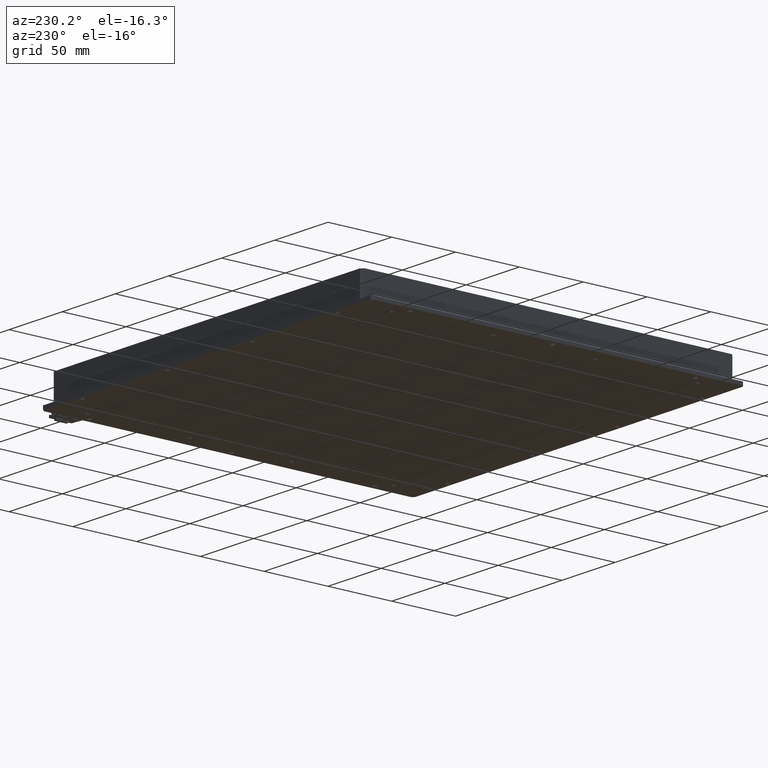
[diagram: clean part render]
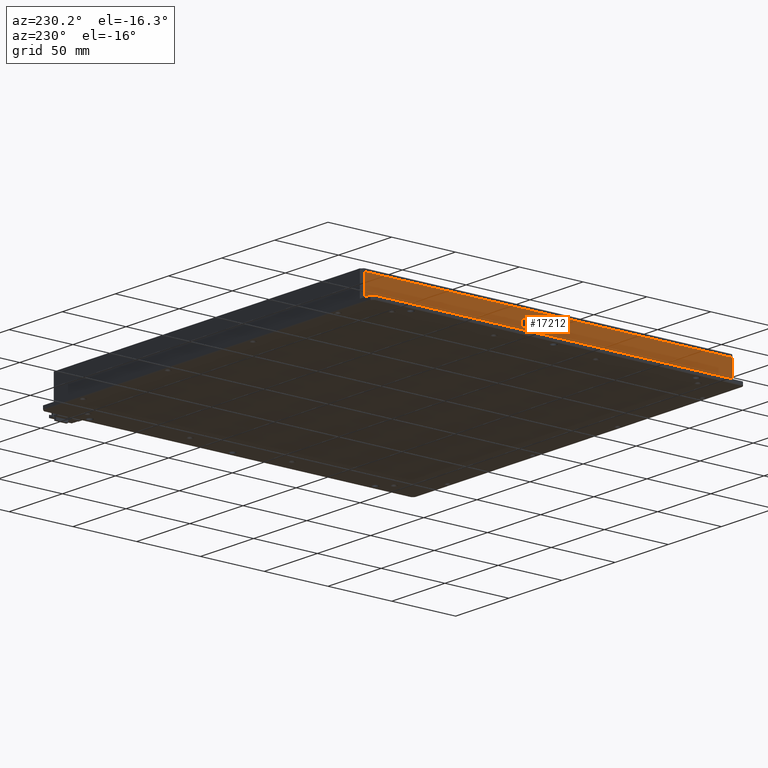
[diagram: same view with one face highlighted and labeled with its STEP entity id]
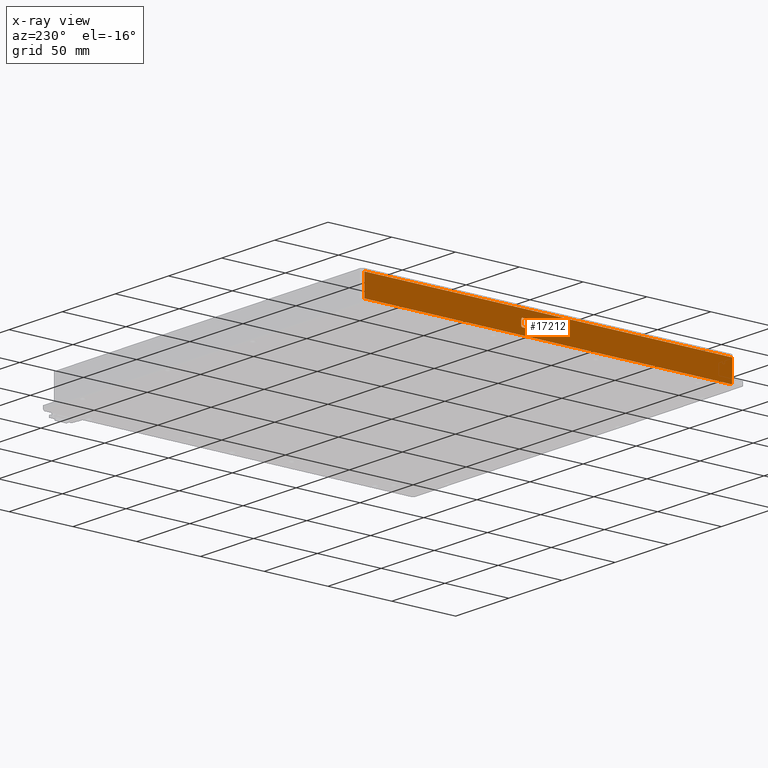
[diagram: x-ray of the same camera — body ghosted, the highlighted face saturated]
A machine part, auxiliary view. The second image highlights one B-rep face of the part: STEP entity #17212.
The next image is the same camera in x-ray: the body ghosted, the highlighted face saturated — about 0% of this face is hidden behind the body in this view.
In plain terms, the highlighted planar face has unit normal (1, 0, -0).
Its self-contained STEP definition (entity closure, byte-faithful):
#16 = VERTEX_POINT ( 'NONE', #7979 ) ;
#28 = CARTESIAN_POINT ( 'NONE',  ( -113.0806771263418400, 29.52047901083829700, 2.543510993412434500 ) ) ;
#108 = CARTESIAN_POINT ( 'NONE',  ( -113.0806771263418400, 25.20176813594741800, 0.9804387240556905500 ) ) ;
#119 = CARTESIAN_POINT ( 'NONE',  ( -113.0806771263418400, 22.85866375520084800, -2.628863601525695900 ) ) ;
#139 = B_SPLINE_CURVE_WITH_KNOTS ( 'NONE', 3,
 ( #16953, #10525, #12749, #27745 ),
 .UNSPECIFIED., .F., .F.,
 ( 4, 4 ),
 ( 5.000000000000000000, 6.000000000000000000 ),
 .UNSPECIFIED. ) ;
#183 = ORIENTED_EDGE ( 'NONE', *, *, #26477, .F. ) ;
#197 = EDGE_LOOP ( 'NONE', ( #2065, #16250, #9662, #13901, #22701, #2919, #20541, #8870 ) ) ;
#205 = VERTEX_POINT ( 'NONE', #16104 ) ;
#235 = ORIENTED_EDGE ( 'NONE', *, *, #12052, .F. ) ;
#245 = CARTESIAN_POINT ( 'NONE',  ( -113.0806771263418400, 23.91739820625581800, -1.698631043386154900 ) ) ;
#333 = VERTEX_POINT ( 'NONE', #22514 ) ;
#334 = VECTOR ( 'NONE', #20082, 1000.000000000000000 ) ;
#336 = B_SPLINE_CURVE_WITH_KNOTS ( 'NONE', 3,
 ( #14082, #16173, #7619, #22635 ),
 .UNSPECIFIED., .F., .F.,
 ( 4, 4 ),
 ( 5.000000000000000000, 6.000000000000000000 ),
 .UNSPECIFIED. ) ;
#354 = DIRECTION ( 'NONE',  ( -0.0000000000000000000, -2.331034670843810500E-015, 1.000000000000000000 ) ) ;
#402 = CARTESIAN_POINT ( 'NONE',  ( -113.0806771263418400, 34.39839500742169800, -3.052210686488300100 ) ) ;
#407 = ORIENTED_EDGE ( 'NONE', *, *, #20113, .F. ) ;
#495 = VERTEX_POINT ( 'NONE', #25968 ) ;
#511 = CARTESIAN_POINT ( 'NONE',  ( -113.0806771263418400, 20.84535926628827000, -1.028863601525684900 ) ) ;
#583 = CARTESIAN_POINT ( 'NONE',  ( -113.0806771263418400, 33.31073276946850100, -3.421969540385274600 ) ) ;
#586 = LINE ( 'NONE', #27063, #17002 ) ;
#590 = VERTEX_POINT ( 'NONE', #19781 ) ;
#592 = VECTOR ( 'NONE', #19338, 1000.000000000000000 ) ;
#602 = CARTESIAN_POINT ( 'NONE',  ( -113.0806771263418400, 25.61831762215625800, 1.538578258939424300 ) ) ;
#626 = VERTEX_POINT ( 'NONE', #23191 ) ;
#671 = CARTESIAN_POINT ( 'NONE',  ( -113.0806771263418400, 17.56509966650453300, 1.488875717024842800 ) ) ;
#679 = CARTESIAN_POINT ( 'NONE',  ( -113.0806771263418400, -130.7301954307733100, -8.500000000028194300 ) ) ;
#681 = CARTESIAN_POINT ( 'NONE',  ( -113.0806771263418400, 25.10928571301596100, -2.064612655068145800 ) ) ;
#682 = VECTOR ( 'NONE', #18201, 1000.000000000000000 ) ;
#716 = ORIENTED_EDGE ( 'NONE', *, *, #18518, .F. ) ;
#722 = CARTESIAN_POINT ( 'NONE',  ( -113.0806771263418400, 11.03919377142580100, 0.1804387240556450900 ) ) ;
#758 = DIRECTION ( 'NONE',  ( -0.0000000000000000000, -1.000000000000000000, -4.345622147516879900E-015 ) ) ;
#822 = VERTEX_POINT ( 'NONE', #16156 ) ;
#851 = CARTESIAN_POINT ( 'NONE',  ( -113.0806771263418400, 2.853039093221527700, 1.526085019350354600 ) ) ;
#860 = EDGE_CURVE ( 'NONE', #22692, #12211, #14249, .T. ) ;
#1043 = B_SPLINE_CURVE_WITH_KNOTS ( 'NONE', 3,
 ( #4242, #12783, #19247, #6348 ),
 .UNSPECIFIED., .F., .F.,
 ( 4, 4 ),
 ( 7.000000000000000000, 8.000000000000000000 ),
 .UNSPECIFIED. ) ;
#1070 = CARTESIAN_POINT ( 'NONE',  ( -113.0806771263418400, 20.84535926628826300, 1.482764305451047300 ) ) ;
#1076 = CARTESIAN_POINT ( 'NONE',  ( -113.0806771263418400, 1.701605886082365500, -1.847468252688597300 ) ) ;
#1112 = VERTEX_POINT ( 'NONE', #17724 ) ;
#1120 = VECTOR ( 'NONE', #354, 1000.000000000000000 ) ;
#1208 = CARTESIAN_POINT ( 'NONE',  ( -113.0806771263418400, -1.422569343771056900, -1.400956624781592800 ) ) ;
#1218 = CARTESIAN_POINT ( 'NONE',  ( -113.0806771263418400, -1.318404930575013400, 0.2920666310323484200 ) ) ;
#1225 = B_SPLINE_CURVE_WITH_KNOTS ( 'NONE', 3,
 ( #8366, #14834, #21268, #23432 ),
 .UNSPECIFIED., .F., .F.,
 ( 4, 4 ),
 ( 3.000000000000000000, 4.000000000000000000 ),
 .UNSPECIFIED. ) ;
#1321 = CARTESIAN_POINT ( 'NONE',  ( -113.0806771263418400, 20.84535926628826300, 1.482764305451047300 ) ) ;
#1388 = CARTESIAN_POINT ( 'NONE',  ( -113.0806771263418400, 0.1048508833784052300, -0.1358403457118392800 ) ) ;
#1410 = ORIENTED_EDGE ( 'NONE', *, *, #17649, .F. ) ;
#1426 = DIRECTION ( 'NONE',  ( -0.0000000000000000000, 1.000000000000000000, 4.252855617981530800E-015 ) ) ;
#1569 = ORIENTED_EDGE ( 'NONE', *, *, #21008, .F. ) ;
#1575 = CARTESIAN_POINT ( 'NONE',  ( -113.0806771263418400, 159.2698045692267500, 8.499999999971805700 ) ) ;
#1606 = VERTEX_POINT ( 'NONE', #7418 ) ;
#1782 = CARTESIAN_POINT ( 'NONE',  ( -113.0806771263418400, 1.701605886082362200, -1.140491508502525300 ) ) ;
#1795 = LINE ( 'NONE', #19600, #18195 ) ;
#1846 = EDGE_CURVE ( 'NONE', #6770, #6671, #1978, .T. ) ;
#1865 = CARTESIAN_POINT ( 'NONE',  ( -113.0806771263418400, 2.204904966666469500, -1.159096159665320900 ) ) ;
#1978 = LINE ( 'NONE', #26361, #12671 ) ;
#1996 = VERTEX_POINT ( 'NONE', #13683 ) ;
#2017 = CARTESIAN_POINT ( 'NONE',  ( -113.0806771263418400, 26.60760913108027700, 0.4159173611568318700 ) ) ;
#2065 = ORIENTED_EDGE ( 'NONE', *, *, #19884, .F. ) ;
#2108 = CARTESIAN_POINT ( 'NONE',  ( -113.0806771263418400, -0.3926072020730281300, 0.7260850193503489700 ) ) ;
#2110 = CARTESIAN_POINT ( 'NONE',  ( -113.0806771263418400, 0.1916004777536700600, 0.9618340728928045400 ) ) ;
#2189 = VERTEX_POINT ( 'NONE', #511 ) ;
#2192 = CARTESIAN_POINT ( 'NONE',  ( -113.0806771263418400, 23.41409912567193500, -2.039896592331523500 ) ) ;
#2251 = FACE_OUTER_BOUND ( 'NONE', #14687, .T. ) ;
#2261 = ORIENTED_EDGE ( 'NONE', *, *, #13590, .F. ) ;
#2287 = CARTESIAN_POINT ( 'NONE',  ( -113.0806771263418400, 25.61831762215625800, 0.9804387240556905500 ) ) ;
#2362 = CARTESIAN_POINT ( 'NONE',  ( -113.0806771263418400, 5.554607508581379500, -0.5265380201304181700 ) ) ;
#2433 = EDGE_CURVE ( 'NONE', #25040, #25646, #24320, .T. ) ;
#2495 = DIRECTION ( 'NONE',  ( -0.0000000000000000000, 4.032059971189346200E-015, -1.000000000000000000 ) ) ;
#2693 = B_SPLINE_CURVE_WITH_KNOTS ( 'NONE', 3,
 ( #14828, #2017, #16967, #4115 ),
 .UNSPECIFIED., .F., .F.,
 ( 4, 4 ),
 ( 2.000000000000000000, 3.000000000000000000 ),
 .UNSPECIFIED. ) ;
#2766 = CARTESIAN_POINT ( 'NONE',  ( -113.0806771263418400, -0.3348462502075280600, -0.9297289341380008400 ) ) ;
#2771 = EDGE_CURVE ( 'NONE', #15706, #4363, #23073, .T. ) ;
#2796 = CARTESIAN_POINT ( 'NONE',  ( -113.0806771263418400, 6.040599936920963300, -2.517235694549008000 ) ) ;
#2803 = LINE ( 'NONE', #12750, #24230 ) ;
#2805 = CARTESIAN_POINT ( 'NONE',  ( -113.0806771263418400, 2.204904966666469500, -1.159096159665320900 ) ) ;
#2849 = CARTESIAN_POINT ( 'NONE',  ( -113.0806771263418400, 10.63995093746149200, 0.9246247705672789900 ) ) ;
#2909 = FACE_BOUND ( 'NONE', #10922, .T. ) ;
#2910 = ORIENTED_EDGE ( 'NONE', *, *, #22219, .F. ) ;
#2919 = ORIENTED_EDGE ( 'NONE', *, *, #6652, .F. ) ;
#2954 = CARTESIAN_POINT ( 'NONE',  ( -113.0806771263418400, 11.01615429062585100, -0.7125845317583305900 ) ) ;
#2968 = VERTEX_POINT ( 'NONE', #24770 ) ;
#3037 = VECTOR ( 'NONE', #21545, 1000.000000000000000 ) ;
#3063 = DIRECTION ( 'NONE',  ( -0.0000000000000000000, -4.972873964466980800E-015, 1.000000000000000000 ) ) ;
#3095 = EDGE_CURVE ( 'NONE', #26600, #1606, #23349, .T. ) ;
#3097 = VERTEX_POINT ( 'NONE', #19828 ) ;
#3142 = ORIENTED_EDGE ( 'NONE', *, *, #10245, .F. ) ;
#3257 = LINE ( 'NONE', #2796, #19675 ) ;
#3320 = VERTEX_POINT ( 'NONE', #8635 ) ;
#3332 = EDGE_CURVE ( 'NONE', #205, #23334, #24690, .T. ) ;
#3376 = DIRECTION ( 'NONE',  ( -0.0000000000000000000, 1.000000000000000000, 2.149513273744095900E-015 ) ) ;
#3446 = CARTESIAN_POINT ( 'NONE',  ( -113.0806771263418400, 0.1048508833784052300, -0.1358403457118392800 ) ) ;
#3489 = EDGE_CURVE ( 'NONE', #7731, #6283, #9192, .T. ) ;
#3516 = ORIENTED_EDGE ( 'NONE', *, *, #3615, .F. ) ;
#3538 = EDGE_LOOP ( 'NONE', ( #7868, #4366, #8787, #9543, #1410, #7128, #12055, #17099, #7549, #15587 ) ) ;
#3580 = LINE ( 'NONE', #23931, #25020 ) ;
#3590 = CARTESIAN_POINT ( 'NONE',  ( -113.0806771263418400, 1.273590742761893500, -1.748333585300784900 ) ) ;
#3615 = EDGE_CURVE ( 'NONE', #26027, #19223, #20010, .T. ) ;
#3627 = CARTESIAN_POINT ( 'NONE',  ( -113.0806771263418400, 1.580026654065078300, 1.160103407668380700 ) ) ;
#3654 = EDGE_CURVE ( 'NONE', #21996, #7624, #19534, .T. ) ;
#3655 = EDGE_CURVE ( 'NONE', #22876, #495, #19167, .T. ) ;
#3697 = EDGE_CURVE ( 'NONE', #9439, #25040, #18431, .T. ) ;
#3702 = DIRECTION ( 'NONE',  ( -0.0000000000000000000, 0.0000000000000000000, -1.000000000000000000 ) ) ;
#3709 = CARTESIAN_POINT ( 'NONE',  ( -113.0806771263418400, 9.407717297656423800, 0.9246247705672755400 ) ) ;
#3755 = CARTESIAN_POINT ( 'NONE',  ( -113.0806771263418400, 4.692736226807313400, 0.4284106007457176800 ) ) ;
#3864 = CARTESIAN_POINT ( 'NONE',  ( -113.0806771263418400, 8.574618325239091700, -2.517235694548997800 ) ) ;
#3873 = EDGE_CURVE ( 'NONE', #17202, #15284, #22982, .T. ) ;
#3878 = B_SPLINE_CURVE_WITH_KNOTS ( 'NONE', 3,
 ( #9998, #20342, #20834, #7944 ),
 .UNSPECIFIED., .F., .F.,
 ( 4, 4 ),
 ( 11.00000000000000000, 12.00000000000000000 ),
 .UNSPECIFIED. ) ;
#3976 = EDGE_CURVE ( 'NONE', #17987, #6770, #22710, .T. ) ;
#4059 = B_SPLINE_CURVE_WITH_KNOTS ( 'NONE', 3,
 ( #25491, #27769, #14929, #2110 ),
 .UNSPECIFIED., .F., .F.,
 ( 4, 4 ),
 ( 9.000000000000000000, 10.00000000000000000 ),
 .UNSPECIFIED. ) ;
#4089 = CARTESIAN_POINT ( 'NONE',  ( -113.0806771263418400, 22.54627868218860700, -1.711124282975120300 ) ) ;
#4115 = CARTESIAN_POINT ( 'NONE',  ( -113.0806771263418400, 25.61831762215625800, 0.9804387240556905500 ) ) ;
#4176 = VERTEX_POINT ( 'NONE', #5046 ) ;
#4178 = DIRECTION ( 'NONE',  ( -0.0000000000000000000, -3.661440193980292900E-015, 1.000000000000000000 ) ) ;
#4195 = EDGE_CURVE ( 'NONE', #13427, #17638, #8821, .T. ) ;
#4242 = CARTESIAN_POINT ( 'NONE',  ( -113.0806771263418400, 5.554607508581379500, -0.5265380201304181700 ) ) ;
#4322 = CARTESIAN_POINT ( 'NONE',  ( -113.0806771263418400, 23.37937765460639700, -0.8242124387349767400 ) ) ;
#4363 = VERTEX_POINT ( 'NONE', #5656 ) ;
#4366 = ORIENTED_EDGE ( 'NONE', *, *, #10817, .F. ) ;
#4372 = CARTESIAN_POINT ( 'NONE',  ( -113.0806771263418400, 29.52047901083829700, 2.543510993412434500 ) ) ;
#4373 = VERTEX_POINT ( 'NONE', #1070 ) ;
#4396 = CARTESIAN_POINT ( 'NONE',  ( -113.0806771263418400, 24.93005369570931900, 0.7757875612649893800 ) ) ;
#4417 = CARTESIAN_POINT ( 'NONE',  ( -113.0806771263418400, 20.52161670273999800, -2.653579664262304400 ) ) ;
#4446 = LINE ( 'NONE', #5459, #5105 ) ;
#4532 = CARTESIAN_POINT ( 'NONE',  ( -113.0806771263418400, 21.71317970977093400, -2.591654299200135900 ) ) ;
#4572 = CARTESIAN_POINT ( 'NONE',  ( -113.0806771263418400, 6.040599936920949100, 1.482764305450995400 ) ) ;
#4612 = B_SPLINE_CURVE_WITH_KNOTS ( 'NONE', 3,
 ( #13620, #15748, #2954, #17920 ),
 .UNSPECIFIED., .F., .F.,
 ( 4, 4 ),
 ( 6.000000000000000000, 7.000000000000000000 ),
 .UNSPECIFIED. ) ;
#4722 = EDGE_CURVE ( 'NONE', #17638, #23421, #11747, .T. ) ;
#4733 = DIRECTION ( 'NONE',  ( -0.0000000000000000000, -1.000000000000000000, -3.998384077638535600E-015 ) ) ;
#4797 = B_SPLINE_CURVE_WITH_KNOTS ( 'NONE', 3,
 ( #22182, #7145, #9294, #24338 ),
 .UNSPECIFIED., .F., .F.,
 ( 4, 4 ),
 ( 10.00000000000000000, 11.00000000000000000 ),
 .UNSPECIFIED. ) ;
#4837 = CARTESIAN_POINT ( 'NONE',  ( -113.0806771263418400, 16.38489415000919500, 1.538578258939393000 ) ) ;
#4842 = VECTOR ( 'NONE', #8381, 1000.000000000000000 ) ;
#4872 = LINE ( 'NONE', #13637, #26324 ) ;
#4893 = VERTEX_POINT ( 'NONE', #25300 ) ;
#4911 = EDGE_CURVE ( 'NONE', #2968, #822, #17828, .T. ) ;
#4930 = CARTESIAN_POINT ( 'NONE',  ( -113.0806771263418400, 18.24200610241565800, -0.5451426712931688500 ) ) ;
#4957 = CARTESIAN_POINT ( 'NONE',  ( -113.0806771263418400, 23.93481302507681400, 0.3664852356835904300 ) ) ;
#5046 = CARTESIAN_POINT ( 'NONE',  ( -113.0806771263418400, 25.80923162972758400, -0.7683984852466380100 ) ) ;
#5105 = VECTOR ( 'NONE', #3376, 1000.000000000000000 ) ;
#5120 = DIRECTION ( 'NONE',  ( -0.0000000000000000000, 3.469446951953611000E-015, -1.000000000000000000 ) ) ;
#5160 = CARTESIAN_POINT ( 'NONE',  ( -113.0806771263418400, 13.19138414460074100, -1.121886857339715600 ) ) ;
#5167 = VECTOR ( 'NONE', #4178, 1000.000000000000000 ) ;
#5270 = CARTESIAN_POINT ( 'NONE',  ( -113.0806771263418400, 19.95449934200454600, -2.052119415479204600 ) ) ;
#5272 = ORIENTED_EDGE ( 'NONE', *, *, #3332, .F. ) ;
#5287 = ORIENTED_EDGE ( 'NONE', *, *, #4911, .F. ) ;
#5313 = CARTESIAN_POINT ( 'NONE',  ( -113.0806771263418400, 0.1048508833784139000, -2.591654299200211800 ) ) ;
#5441 = B_SPLINE_CURVE_WITH_KNOTS ( 'NONE', 3,
 ( #8479, #27788, #25684, #12879 ),
 .UNSPECIFIED., .F., .F.,
 ( 4, 4 ),
 ( 8.000000000000000000, 9.000000000000000000 ),
 .UNSPECIFIED. ) ;
#5459 = CARTESIAN_POINT ( 'NONE',  ( -113.0806771263418400, 14.00706829819729800, 1.482764305451023100 ) ) ;
#5575 = VERTEX_POINT ( 'NONE', #14544 ) ;
#5656 = CARTESIAN_POINT ( 'NONE',  ( -113.0806771263418400, 34.39839500742168400, 1.238401079479551500 ) ) ;
#5706 = VECTOR ( 'NONE', #16394, 1000.000000000000000 ) ;
#5779 = EDGE_LOOP ( 'NONE', ( #5858, #7253, #6309, #26014 ) ) ;
#5783 = VECTOR ( 'NONE', #15166, 1000.000000000000000 ) ;
#5790 = CARTESIAN_POINT ( 'NONE',  ( -113.0806771263418400, 3.541303019668370100, -2.052119415479260100 ) ) ;
#5792 = CARTESIAN_POINT ( 'NONE',  ( -113.0806771263418400, 20.01226029387070300, -0.7870031364094267600 ) ) ;
#5804 = DIRECTION ( 'NONE',  ( -0.0000000000000000000, -1.000000000000000000, -2.815575585570327800E-015 ) ) ;
#5813 = LINE ( 'NONE', #12812, #5167 ) ;
#5858 = ORIENTED_EDGE ( 'NONE', *, *, #10958, .F. ) ;
#5880 = CARTESIAN_POINT ( 'NONE',  ( -113.0806771263418400, 4.704201883919170200, -0.5637473224560131100 ) ) ;
#6017 = EDGE_CURVE ( 'NONE', #23927, #25675, #13244, .T. ) ;
#6037 = CARTESIAN_POINT ( 'NONE',  ( -113.0806771263418400, 6.040599936920963300, -2.517235694549008000 ) ) ;
#6054 = EDGE_CURVE ( 'NONE', #17105, #626, #25079, .T. ) ;
#6126 = VERTEX_POINT ( 'NONE', #11116 ) ;
#6129 = ORIENTED_EDGE ( 'NONE', *, *, #23776, .F. ) ;
#6131 = CARTESIAN_POINT ( 'NONE',  ( -113.0806771263418400, 0.2089071299984212600, 1.538578258939334000 ) ) ;
#6146 = CARTESIAN_POINT ( 'NONE',  ( -113.0806771263418400, 7.342384685433562400, 1.482764305451002200 ) ) ;
#6153 = B_SPLINE_CURVE_WITH_KNOTS ( 'NONE', 3,
 ( #9489, #22392, #26709, #13886 ),
 .UNSPECIFIED., .F., .F.,
 ( 4, 4 ),
 ( 4.000000000000000000, 5.000000000000000000 ),
 .UNSPECIFIED. ) ;
#6193 = ORIENTED_EDGE ( 'NONE', *, *, #12546, .F. ) ;
#6267 = CARTESIAN_POINT ( 'NONE',  ( -113.0806771263418400, 16.38489415000921000, -2.591654299200153200 ) ) ;
#6283 = VERTEX_POINT ( 'NONE', #22700 ) ;
#6309 = ORIENTED_EDGE ( 'NONE', *, *, #7169, .F. ) ;
#6348 = CARTESIAN_POINT ( 'NONE',  ( -113.0806771263418400, 3.732217027240134900, -2.591654299200198100 ) ) ;
#6360 = DIRECTION ( 'NONE',  ( -0.0000000000000000000, -3.108046227791708500E-015, 1.000000000000000000 ) ) ;
#6456 = CARTESIAN_POINT ( 'NONE',  ( -113.0806771263418400, 20.82231978548775700, -1.735840345711756800 ) ) ;
#6486 = CARTESIAN_POINT ( 'NONE',  ( -113.0806771263418400, 25.56618133226995600, -2.591654299200121700 ) ) ;
#6529 = VECTOR ( 'NONE', #13717, 1000.000000000000000 ) ;
#6548 = EDGE_CURVE ( 'NONE', #13368, #590, #14112, .T. ) ;
#6565 = ORIENTED_EDGE ( 'NONE', *, *, #22112, .F. ) ;
#6625 = CARTESIAN_POINT ( 'NONE',  ( -113.0806771263418400, 9.407717297656436300, -2.517235694548994200 ) ) ;
#6646 = VERTEX_POINT ( 'NONE', #6713 ) ;
#6652 = EDGE_CURVE ( 'NONE', #11920, #10613, #12375, .T. ) ;
#6671 = VERTEX_POINT ( 'NONE', #23486 ) ;
#6709 = DIRECTION ( 'NONE',  ( -0.0000000000000000000, -1.000000000000000000, -2.815575585569312900E-015 ) ) ;
#6713 = CARTESIAN_POINT ( 'NONE',  ( -113.0806771263418400, 23.91739820625581500, -0.2102589503628835000 ) ) ;
#6746 = DIRECTION ( 'NONE',  ( -0.0000000000000000000, -1.000000000000000000, -3.661440286475692700E-015 ) ) ;
#6768 = CARTESIAN_POINT ( 'NONE',  ( -113.0806771263418400, 20.01226029387069600, 1.482764305451044000 ) ) ;
#6770 = VERTEX_POINT ( 'NONE', #22006 ) ;
#6915 = CARTESIAN_POINT ( 'NONE',  ( -113.0806771263418400, 10.63995093746148900, 1.482764305451012700 ) ) ;
#6924 = ORIENTED_EDGE ( 'NONE', *, *, #26284, .F. ) ;
#6960 = VERTEX_POINT ( 'NONE', #9867 ) ;
#7015 = DIRECTION ( 'NONE',  ( -0.0000000000000000000, 1.000000000000000000, 3.661440286475692700E-015 ) ) ;
#7118 = CARTESIAN_POINT ( 'NONE',  ( -113.0806771263418400, 29.52047901083831900, -3.421969540385289200 ) ) ;
#7122 = VECTOR ( 'NONE', #12667, 1000.000000000000000 ) ;
#7128 = ORIENTED_EDGE ( 'NONE', *, *, #20004, .F. ) ;
#7145 = CARTESIAN_POINT ( 'NONE',  ( -113.0806771263418400, 0.5676956643408843700, -0.06142174106068057400 ) ) ;
#7169 = EDGE_CURVE ( 'NONE', #25388, #25304, #3257, .T. ) ;
#7180 = CARTESIAN_POINT ( 'NONE',  ( -113.0806771263418400, 20.01226029387069600, 1.482764305451044000 ) ) ;
#7191 = CARTESIAN_POINT ( 'NONE',  ( -113.0806771263418400, 10.63995093746148900, 1.482764305451012700 ) ) ;
#7253 = ORIENTED_EDGE ( 'NONE', *, *, #17860, .F. ) ;
#7418 = CARTESIAN_POINT ( 'NONE',  ( -113.0806771263418400, 23.37937765460639700, -0.8242124387349767400 ) ) ;
#7549 = ORIENTED_EDGE ( 'NONE', *, *, #16565, .F. ) ;
#7583 = LINE ( 'NONE', #26010, #24051 ) ;
#7619 = CARTESIAN_POINT ( 'NONE',  ( -113.0806771263418400, 11.47899907158865100, 1.482764305451017100 ) ) ;
#7624 = VERTEX_POINT ( 'NONE', #19165 ) ;
#7645 = LINE ( 'NONE', #22502, #682 ) ;
#7662 = CARTESIAN_POINT ( 'NONE',  ( -113.0806771263418400, 0.2263219488192157200, -2.070724066642097400 ) ) ;
#7731 = VERTEX_POINT ( 'NONE', #25774 ) ;
#7786 = LINE ( 'NONE', #10451, #7122 ) ;
#7859 = FACE_BOUND ( 'NONE', #18009, .T. ) ;
#7868 = ORIENTED_EDGE ( 'NONE', *, *, #10074, .F. ) ;
#7913 = CARTESIAN_POINT ( 'NONE',  ( -113.0806771263418400, 4.704201883919170200, -0.5637473224560131100 ) ) ;
#7921 = VERTEX_POINT ( 'NONE', #7180 ) ;
#7944 = CARTESIAN_POINT ( 'NONE',  ( -113.0806771263418400, 25.56618133226995600, -2.591654299200121700 ) ) ;
#7966 = VERTEX_POINT ( 'NONE', #22411 ) ;
#7979 = CARTESIAN_POINT ( 'NONE',  ( -113.0806771263418400, 28.43291462432451100, 1.455903089894790900 ) ) ;
#8005 = ORIENTED_EDGE ( 'NONE', *, *, #3655, .F. ) ;
#8217 = EDGE_CURVE ( 'NONE', #14096, #12594, #2803, .T. ) ;
#8342 = CARTESIAN_POINT ( 'NONE',  ( -113.0806771263418400, 9.407717297656423800, 0.9246247705672755400 ) ) ;
#8366 = CARTESIAN_POINT ( 'NONE',  ( -113.0806771263418400, 14.52778219760230600, -0.5451426712931827200 ) ) ;
#8381 = DIRECTION ( 'NONE',  ( -0.0000000000000000000, -0.0000000000000000000, -1.000000000000000000 ) ) ;
#8478 = B_SPLINE_CURVE_WITH_KNOTS ( 'NONE', 3,
 ( #22630, #11960, #26972, #14158 ),
 .UNSPECIFIED., .F., .F.,
 ( 4, 4 ),
 ( 6.000000000000000000, 7.000000000000000000 ),
 .UNSPECIFIED. ) ;
#8479 = CARTESIAN_POINT ( 'NONE',  ( -113.0806771263418400, 3.766938498305656400, 1.538578258939348000 ) ) ;
#8517 = FACE_BOUND ( 'NONE', #25393, .T. ) ;
#8548 = VERTEX_POINT ( 'NONE', #722 ) ;
#8608 = EDGE_CURVE ( 'NONE', #20802, #16960, #24532, .T. ) ;
#8627 = CARTESIAN_POINT ( 'NONE',  ( -113.0806771263418400, 24.14898284660205300, -2.293979880595448800 ) ) ;
#8635 = CARTESIAN_POINT ( 'NONE',  ( -113.0806771263418400, 0.2089071299984212600, 1.538578258939334000 ) ) ;
#8641 = CARTESIAN_POINT ( 'NONE',  ( -113.0806771263418400, 6.856392257093888900, -2.517235694549004900 ) ) ;
#8690 = CARTESIAN_POINT ( 'NONE',  ( -113.0806771263418400, 24.69846905536320800, -1.438165927107066400 ) ) ;
#8692 = CARTESIAN_POINT ( 'NONE',  ( -113.0806771263418400, 21.10571621599055100, -2.077105894657125300 ) ) ;
#8702 = EDGE_CURVE ( 'NONE', #19223, #13368, #25959, .T. ) ;
#8756 = CARTESIAN_POINT ( 'NONE',  ( -113.0806771263418400, 10.63995093746149200, 0.9246247705672789900 ) ) ;
#8787 = ORIENTED_EDGE ( 'NONE', *, *, #1846, .F. ) ;
#8821 = LINE ( 'NONE', #4957, #19628 ) ;
#8825 = EDGE_CURVE ( 'NONE', #23638, #26648, #1225, .T. ) ;
#8870 = ORIENTED_EDGE ( 'NONE', *, *, #15355, .F. ) ;
#8953 = CARTESIAN_POINT ( 'NONE',  ( -113.0806771263418400, 16.38489415000921000, -2.591654299200153200 ) ) ;
#9192 = LINE ( 'NONE', #1218, #25663 ) ;
#9222 = ORIENTED_EDGE ( 'NONE', *, *, #13413, .F. ) ;
#9294 = CARTESIAN_POINT ( 'NONE',  ( -113.0806771263418400, 0.7877064809986740200, 0.1307361821410550600 ) ) ;
#9419 = CARTESIAN_POINT ( 'NONE',  ( -113.0806771263418400, -0.5720555525328199200, -1.134380096928726300 ) ) ;
#9439 = VERTEX_POINT ( 'NONE', #19575 ) ;
#9489 = CARTESIAN_POINT ( 'NONE',  ( -113.0806771263418400, 2.204904966666469500, -1.159096159665320900 ) ) ;
#9543 = ORIENTED_EDGE ( 'NONE', *, *, #3976, .F. ) ;
#9545 = EDGE_CURVE ( 'NONE', #26648, #1996, #26484, .T. ) ;
#9662 = ORIENTED_EDGE ( 'NONE', *, *, #12588, .F. ) ;
#9867 = CARTESIAN_POINT ( 'NONE',  ( -113.0806771263418400, 25.56618133226995600, -2.591654299200121700 ) ) ;
#9901 = CARTESIAN_POINT ( 'NONE',  ( -113.0806771263418400, 0.7816491527133894200, -2.058501243494427000 ) ) ;
#9936 = CARTESIAN_POINT ( 'NONE',  ( -113.0806771263418400, 0.2089071299984212600, 1.538578258939334000 ) ) ;
#9998 = CARTESIAN_POINT ( 'NONE',  ( -113.0806771263418400, 27.47542957456282400, -0.5079333689675460400 ) ) ;
#10069 = EDGE_CURVE ( 'NONE', #14299, #27358, #1043, .T. ) ;
#10074 = EDGE_CURVE ( 'NONE', #13873, #14299, #5441, .T. ) ;
#10098 = B_SPLINE_CURVE_WITH_KNOTS ( 'NONE', 3,
 ( #11285, #24170, #681, #15616 ),
 .UNSPECIFIED., .F., .F.,
 ( 4, 4 ),
 ( 4.000000000000000000, 5.000000000000000000 ),
 .UNSPECIFIED. ) ;
#10122 = LINE ( 'NONE', #4572, #21562 ) ;
#10245 = EDGE_CURVE ( 'NONE', #1996, #11385, #22533, .T. ) ;
#10362 = CARTESIAN_POINT ( 'NONE',  ( -113.0806771263418400, 16.38489415000921000, -2.591654299200153200 ) ) ;
#10402 = CARTESIAN_POINT ( 'NONE',  ( -113.0806771263418400, 24.80252530198311000, 0.3664852356835939200 ) ) ;
#10413 = EDGE_CURVE ( 'NONE', #10764, #12594, #7645, .T. ) ;
#10451 = CARTESIAN_POINT ( 'NONE',  ( -113.0806771263418400, 159.2698045692267500, -8.500000000028194300 ) ) ;
#10465 = CARTESIAN_POINT ( 'NONE',  ( -113.0806771263418400, 14.00706829819731100, -2.517235694548980400 ) ) ;
#10504 = LINE ( 'NONE', #8690, #4842 ) ;
#10525 = CARTESIAN_POINT ( 'NONE',  ( -113.0806771263418400, 28.80272783079129800, -3.421969540385292300 ) ) ;
#10548 = CARTESIAN_POINT ( 'NONE',  ( -113.0806771263418400, -0.1555060663239876700, 0.9493408333038424500 ) ) ;
#10582 = EDGE_CURVE ( 'NONE', #16960, #13592, #24089, .T. ) ;
#10593 = ORIENTED_EDGE ( 'NONE', *, *, #6548, .F. ) ;
#10613 = VERTEX_POINT ( 'NONE', #21169 ) ;
#10638 = ORIENTED_EDGE ( 'NONE', *, *, #3697, .F. ) ;
#10643 = EDGE_CURVE ( 'NONE', #3097, #13427, #15217, .T. ) ;
#10673 = B_SPLINE_CURVE_WITH_KNOTS ( 'NONE', 3,
 ( #18006, #2766, #9419, #24473 ),
 .UNSPECIFIED., .F., .F.,
 ( 4, 4 ),
 ( 3.000000000000000000, 4.000000000000000000 ),
 .UNSPECIFIED. ) ;
#10731 = VECTOR ( 'NONE', #19528, 1000.000000000000000 ) ;
#10764 = VERTEX_POINT ( 'NONE', #679 ) ;
#10817 = EDGE_CURVE ( 'NONE', #6671, #13873, #19352, .T. ) ;
#10922 = EDGE_LOOP ( 'NONE', ( #5272, #17041, #9222, #25556, #12168, #16013, #13752, #18659 ) ) ;
#10958 = EDGE_CURVE ( 'NONE', #4893, #17584, #586, .T. ) ;
#11051 = B_SPLINE_CURVE_WITH_KNOTS ( 'NONE', 3,
 ( #14799, #27632, #4089, #19113 ),
 .UNSPECIFIED., .F., .F.,
 ( 4, 4 ),
 ( 3.000000000000000000, 4.000000000000000000 ),
 .UNSPECIFIED. ) ;
#11065 = DIRECTION ( 'NONE',  ( -0.0000000000000000000, -1.000000000000000000, -3.123482040200149800E-015 ) ) ;
#11080 = CARTESIAN_POINT ( 'NONE',  ( -113.0806771263418400, 21.71317970977093400, -2.591654299200135900 ) ) ;
#11116 = CARTESIAN_POINT ( 'NONE',  ( -113.0806771263418400, 28.43291462432451100, -2.334350764484880400 ) ) ;
#11160 = VECTOR ( 'NONE', #17995, 1000.000000000000000 ) ;
#11248 = CARTESIAN_POINT ( 'NONE',  ( -113.0806771263418400, 13.19138414460074100, -1.121886857339715600 ) ) ;
#11255 = CARTESIAN_POINT ( 'NONE',  ( -113.0806771263418400, 21.69587305752651200, -2.052119415479198000 ) ) ;
#11285 = CARTESIAN_POINT ( 'NONE',  ( -113.0806771263418400, 24.69846905536320800, -1.438165927107066400 ) ) ;
#11312 = CARTESIAN_POINT ( 'NONE',  ( -113.0806771263418400, 27.47542957456282400, -0.5079333689675460400 ) ) ;
#11385 = VERTEX_POINT ( 'NONE', #10362 ) ;
#11398 = EDGE_CURVE ( 'NONE', #7624, #3097, #2693, .T. ) ;
#11448 = CARTESIAN_POINT ( 'NONE',  ( -113.0806771263418400, 8.574618325239077500, 0.9246247705672721000 ) ) ;
#11514 = ORIENTED_EDGE ( 'NONE', *, *, #4722, .F. ) ;
#11518 = EDGE_LOOP ( 'NONE', ( #22138, #11918, #14383, #20263, #6129, #14278, #16068 ) ) ;
#11538 = B_SPLINE_CURVE_WITH_KNOTS ( 'NONE', 3,
 ( #6486, #21514, #8627, #23678 ),
 .UNSPECIFIED., .F., .F.,
 ( 4, 4 ),
 ( 10.00000000000000000, 11.00000000000000000 ),
 .UNSPECIFIED. ) ;
#11604 = ORIENTED_EDGE ( 'NONE', *, *, #23577, .F. ) ;
#11747 = B_SPLINE_CURVE_WITH_KNOTS ( 'NONE', 3,
 ( #19987, #20090, #20620, #19181 ),
 .UNSPECIFIED., .F., .F.,
 ( 4, 4 ),
 ( 13.00000000000000000, 14.00000000000000000 ),
 .UNSPECIFIED. ) ;
#11918 = ORIENTED_EDGE ( 'NONE', *, *, #27678, .F. ) ;
#11920 = VERTEX_POINT ( 'NONE', #8342 ) ;
#11942 = CARTESIAN_POINT ( 'NONE',  ( -113.0806771263418400, 12.39300664324858800, 1.482764305451019600 ) ) ;
#11960 = CARTESIAN_POINT ( 'NONE',  ( -113.0806771263418400, 3.049685929349508700, -2.591654299200201600 ) ) ;
#12052 = EDGE_CURVE ( 'NONE', #6960, #22903, #11538, .T. ) ;
#12055 = ORIENTED_EDGE ( 'NONE', *, *, #26493, .F. ) ;
#12117 = B_SPLINE_CURVE_WITH_KNOTS ( 'NONE', 3,
 ( #7913, #3755, #27386, #14539 ),
 .UNSPECIFIED., .F., .F.,
 ( 4, 4 ),
 ( 2.000000000000000000, 3.000000000000000000 ),
 .UNSPECIFIED. ) ;
#12168 = ORIENTED_EDGE ( 'NONE', *, *, #19825, .F. ) ;
#12199 = CARTESIAN_POINT ( 'NONE',  ( -113.0806771263418400, 2.933839525887872200, 0.2176480263812348400 ) ) ;
#12211 = VERTEX_POINT ( 'NONE', #2805 ) ;
#12257 = CARTESIAN_POINT ( 'NONE',  ( -113.0806771263418400, 3.714910374995814100, 0.9618340728928185300 ) ) ;
#12359 = VERTEX_POINT ( 'NONE', #11942 ) ;
#12375 = LINE ( 'NONE', #6625, #17407 ) ;
#12416 = VECTOR ( 'NONE', #26745, 1000.000000000000000 ) ;
#12471 = CARTESIAN_POINT ( 'NONE',  ( -113.0806771263418400, -1.179519046313429100, 1.098178042606177400 ) ) ;
#12540 = CARTESIAN_POINT ( 'NONE',  ( -113.0806771263418400, 13.19138414460074800, -2.517235694548980400 ) ) ;
#12546 = EDGE_CURVE ( 'NONE', #1606, #23927, #16622, .T. ) ;
#12588 = EDGE_CURVE ( 'NONE', #22448, #17105, #1795, .T. ) ;
#12594 = VERTEX_POINT ( 'NONE', #21740 ) ;
#12644 = CARTESIAN_POINT ( 'NONE',  ( -113.0806771263418400, 3.049685929349496700, 0.7135917797613973200 ) ) ;
#12663 = EDGE_CURVE ( 'NONE', #7966, #205, #17000, .T. ) ;
#12667 = DIRECTION ( 'NONE',  ( 0.0000000000000000000, 1.000000000000000000, 0.0000000000000000000 ) ) ;
#12671 = VECTOR ( 'NONE', #13465, 1000.000000000000000 ) ;
#12749 = CARTESIAN_POINT ( 'NONE',  ( -113.0806771263418400, 28.43291462432451100, -3.052210686488313800 ) ) ;
#12750 = CARTESIAN_POINT ( 'NONE',  ( -113.0806771263418400, -132.7301954307733600, 8.499999999971805700 ) ) ;
#12783 = CARTESIAN_POINT ( 'NONE',  ( -113.0806771263418400, 5.496846556715225600, -1.841356841114749600 ) ) ;
#12788 = CARTESIAN_POINT ( 'NONE',  ( -113.0806771263418400, 14.58586764919777900, -1.835245429540884700 ) ) ;
#12812 = CARTESIAN_POINT ( 'NONE',  ( -113.0806771263418400, 28.43291462432450000, 1.455903089894790900 ) ) ;
#12822 = CARTESIAN_POINT ( 'NONE',  ( -113.0806771263418400, 0.2263219488192157200, -2.070724066642097400 ) ) ;
#12845 = CARTESIAN_POINT ( 'NONE',  ( -113.0806771263418400, 28.80272783079128400, 2.543510993412433100 ) ) ;
#12864 = CARTESIAN_POINT ( 'NONE',  ( -113.0806771263418400, 3.309934712475412600, 0.9618340728928185300 ) ) ;
#12878 = B_SPLINE_CURVE_WITH_KNOTS ( 'NONE', 3,
 ( #23435, #10548, #2108, #17085 ),
 .UNSPECIFIED., .F., .F.,
 ( 4, 4 ),
 ( 8.000000000000000000, 9.000000000000000000 ),
 .UNSPECIFIED. ) ;
#12879 = CARTESIAN_POINT ( 'NONE',  ( -113.0806771263418400, 5.554607508581379500, -0.5265380201304181700 ) ) ;
#13010 = CARTESIAN_POINT ( 'NONE',  ( -113.0806771263418400, 25.80923162972757700, -0.2102589503628765600 ) ) ;
#13133 = CARTESIAN_POINT ( 'NONE',  ( -113.0806771263418400, 34.39839500742168400, 1.238401079479551500 ) ) ;
#13171 = CARTESIAN_POINT ( 'NONE',  ( -113.0806771263418400, 23.91739820625581500, -0.2102589503628835000 ) ) ;
#13244 = B_SPLINE_CURVE_WITH_KNOTS ( 'NONE', 3,
 ( #4532, #4417, #5270, #5792 ),
 .UNSPECIFIED., .F., .F.,
 ( 4, 4 ),
 ( 8.000000000000000000, 9.000000000000000000 ),
 .UNSPECIFIED. ) ;
#13252 = CARTESIAN_POINT ( 'NONE',  ( -113.0806771263418400, 33.31073276946848000, 2.543510993412444700 ) ) ;
#13253 = DIRECTION ( 'NONE',  ( -0.0000000000000000000, -4.548360333353912700E-015, 1.000000000000000000 ) ) ;
#13356 = CARTESIAN_POINT ( 'NONE',  ( -113.0806771263418400, 34.02869052477628700, 2.543510993412447800 ) ) ;
#13368 = VERTEX_POINT ( 'NONE', #1782 ) ;
#13413 = EDGE_CURVE ( 'NONE', #4363, #7966, #23019, .T. ) ;
#13423 = CARTESIAN_POINT ( 'NONE',  ( -113.0806771263418400, 34.02869052477630900, -3.421969540385283900 ) ) ;
#13427 = VERTEX_POINT ( 'NONE', #10402 ) ;
#13439 = CARTESIAN_POINT ( 'NONE',  ( -113.0806771263418400, 26.81020512891661800, 1.476382477435912000 ) ) ;
#13444 = B_SPLINE_CURVE_WITH_KNOTS ( 'NONE', 3,
 ( #5790, #18691, #18799, #5880 ),
 .UNSPECIFIED., .F., .F.,
 ( 4, 4 ),
 ( 3.000000000000000000, 4.000000000000000000 ),
 .UNSPECIFIED. ) ;
#13455 = CARTESIAN_POINT ( 'NONE',  ( -113.0806771263418400, 34.39839500742169100, 1.956206639570597700 ) ) ;
#13465 = DIRECTION ( 'NONE',  ( -0.0000000000000000000, -1.000000000000000000, -4.252855617981522100E-015 ) ) ;
#13568 = ORIENTED_EDGE ( 'NONE', *, *, #8702, .F. ) ;
#13575 = DIRECTION ( 'NONE',  ( -0.0000000000000000000, -3.057094650286988500E-015, 1.000000000000000000 ) ) ;
#13580 = VECTOR ( 'NONE', #14121, 1000.000000000000000 ) ;
#13590 = EDGE_CURVE ( 'NONE', #4176, #1112, #3580, .T. ) ;
#13592 = VERTEX_POINT ( 'NONE', #26073 ) ;
#13620 = CARTESIAN_POINT ( 'NONE',  ( -113.0806771263418400, 12.39300664324859900, -1.121886857339719200 ) ) ;
#13631 = FACE_BOUND ( 'NONE', #16336, .T. ) ;
#13637 = CARTESIAN_POINT ( 'NONE',  ( -113.0806771263418400, 6.856392257093888900, -2.517235694549004900 ) ) ;
#13640 = VERTEX_POINT ( 'NONE', #17763 ) ;
#13683 = CARTESIAN_POINT ( 'NONE',  ( -113.0806771263418400, 18.24200610241565800, -0.5451426712931688500 ) ) ;
#13717 = DIRECTION ( 'NONE',  ( -0.0000000000000000000, 3.469446951953611000E-015, -1.000000000000000000 ) ) ;
#13736 = EDGE_CURVE ( 'NONE', #17584, #25388, #4872, .T. ) ;
#13752 = ORIENTED_EDGE ( 'NONE', *, *, #14147, .F. ) ;
#13813 = CARTESIAN_POINT ( 'NONE',  ( -113.0806771263418400, 14.00706829819731100, -2.517235694548980400 ) ) ;
#13873 = VERTEX_POINT ( 'NONE', #24815 ) ;
#13886 = CARTESIAN_POINT ( 'NONE',  ( -113.0806771263418400, 3.541303019668370100, -2.052119415479260100 ) ) ;
#13901 = ORIENTED_EDGE ( 'NONE', *, *, #16188, .F. ) ;
#14082 = CARTESIAN_POINT ( 'NONE',  ( -113.0806771263418400, 11.03919377142580100, 0.1804387240556450900 ) ) ;
#14096 = VERTEX_POINT ( 'NONE', #25450 ) ;
#14107 = LINE ( 'NONE', #12540, #19116 ) ;
#14112 = LINE ( 'NONE', #17729, #19784 ) ;
#14121 = DIRECTION ( 'NONE',  ( -0.0000000000000000000, 1.243218491116621600E-014, -1.000000000000000000 ) ) ;
#14147 = EDGE_CURVE ( 'NONE', #6126, #16, #5813, .T. ) ;
#14158 = CARTESIAN_POINT ( 'NONE',  ( -113.0806771263418400, 2.204904966666473100, -1.921886857339724800 ) ) ;
#14171 = VECTOR ( 'NONE', #16247, 1000.000000000000000 ) ;
#14229 = CARTESIAN_POINT ( 'NONE',  ( -113.0806771263418400, 8.574618325239077500, 0.9246247705672721000 ) ) ;
#14249 = LINE ( 'NONE', #1865, #27665 ) ;
#14278 = ORIENTED_EDGE ( 'NONE', *, *, #3873, .F. ) ;
#14299 = VERTEX_POINT ( 'NONE', #2362 ) ;
#14303 = FACE_BOUND ( 'NONE', #3538, .T. ) ;
#14333 = DIRECTION ( 'NONE',  ( -0.0000000000000000000, -4.032059971189346200E-015, 1.000000000000000000 ) ) ;
#14366 = VERTEX_POINT ( 'NONE', #11255 ) ;
#14373 = ORIENTED_EDGE ( 'NONE', *, *, #27223, .F. ) ;
#14383 = ORIENTED_EDGE ( 'NONE', *, *, #10582, .F. ) ;
#14411 = VECTOR ( 'NONE', #7015, 1000.000000000000000 ) ;
#14435 = CARTESIAN_POINT ( 'NONE',  ( -113.0806771263418400, 16.38489415000919500, 1.538578258939393000 ) ) ;
#14539 = CARTESIAN_POINT ( 'NONE',  ( -113.0806771263418400, 3.714910374995814100, 0.9618340728928185300 ) ) ;
#14544 = CARTESIAN_POINT ( 'NONE',  ( -113.0806771263418400, 0.1916004777536700600, 0.9618340728928045400 ) ) ;
#14592 = DIRECTION ( 'NONE',  ( -0.0000000000000000000, 3.884341374355105500E-015, -1.000000000000000000 ) ) ;
#14621 = EDGE_CURVE ( 'NONE', #23032, #11920, #18559, .T. ) ;
#14687 = EDGE_LOOP ( 'NONE', ( #17921, #17932, #25692, #22783 ) ) ;
#14732 = CARTESIAN_POINT ( 'NONE',  ( -113.0806771263418400, 12.39300664324859900, -1.121886857339719200 ) ) ;
#14799 = CARTESIAN_POINT ( 'NONE',  ( -113.0806771263418400, 21.69587305752651200, -2.052119415479198000 ) ) ;
#14828 = CARTESIAN_POINT ( 'NONE',  ( -113.0806771263418400, 26.64233060214570200, -0.5265380201303453400 ) ) ;
#14834 = CARTESIAN_POINT ( 'NONE',  ( -113.0806771263418400, 14.60890712999794700, 0.7694057332498262000 ) ) ;
#14857 = B_SPLINE_CURVE_WITH_KNOTS ( 'NONE', 3,
 ( #21350, #19216, #12845, #28 ),
 .UNSPECIFIED., .F., .F.,
 ( 4, 4 ),
 ( 3.000000000000000000, 4.000000000000000000 ),
 .UNSPECIFIED. ) ;
#14905 = DIRECTION ( 'NONE',  ( 0.0000000000000000000, -1.000000000000000000, -0.0000000000000000000 ) ) ;
#14929 = CARTESIAN_POINT ( 'NONE',  ( -113.0806771263418400, 0.5851104831621073400, 0.9618340728928080900 ) ) ;
#14990 = CARTESIAN_POINT ( 'NONE',  ( -113.0806771263418400, 13.19138414460074800, -2.517235694548980400 ) ) ;
#15048 = B_SPLINE_CURVE_WITH_KNOTS ( 'NONE', 3,
 ( #1076, #16009, #18173, #5313 ),
 .UNSPECIFIED., .F., .F.,
 ( 4, 4 ),
 ( 13.00000000000000000, 14.00000000000000000 ),
 .UNSPECIFIED. ) ;
#15117 = CARTESIAN_POINT ( 'NONE',  ( -113.0806771263418400, 21.71317970977093400, -2.591654299200135900 ) ) ;
#15166 = DIRECTION ( 'NONE',  ( -0.0000000000000000000, 1.000000000000000000, 3.667814416331351000E-015 ) ) ;
#15217 = B_SPLINE_CURVE_WITH_KNOTS ( 'NONE', 3,
 ( #2287, #108, #4396, #19417 ),
 .UNSPECIFIED., .F., .F.,
 ( 4, 4 ),
 ( 1.000000000000000000, 2.000000000000000000 ),
 .UNSPECIFIED. ) ;
#15284 = VERTEX_POINT ( 'NONE', #10465 ) ;
#15325 = VECTOR ( 'NONE', #13575, 1000.000000000000000 ) ;
#15355 = EDGE_CURVE ( 'NONE', #22980, #23032, #17169, .T. ) ;
#15461 = CARTESIAN_POINT ( 'NONE',  ( -113.0806771263418400, 34.39839500742169800, -2.334350764484859600 ) ) ;
#15548 = DIRECTION ( 'NONE',  ( -0.0000000000000000000, 4.907441412302633400E-015, -1.000000000000000000 ) ) ;
#15551 = LINE ( 'NONE', #15814, #11160 ) ;
#15587 = ORIENTED_EDGE ( 'NONE', *, *, #10069, .F. ) ;
#15616 = CARTESIAN_POINT ( 'NONE',  ( -113.0806771263418400, 25.54887468002531400, -2.052119415479183800 ) ) ;
#15706 = VERTEX_POINT ( 'NONE', #20891 ) ;
#15748 = CARTESIAN_POINT ( 'NONE',  ( -113.0806771263418400, 11.46742524790000300, -1.146873336517618900 ) ) ;
#15802 = CARTESIAN_POINT ( 'NONE',  ( -113.0806771263418400, 3.766938498305656400, 1.538578258939348000 ) ) ;
#15806 = CARTESIAN_POINT ( 'NONE',  ( -113.0806771263418400, 14.52778219760230600, -0.5451426712931827200 ) ) ;
#15814 = CARTESIAN_POINT ( 'NONE',  ( -113.0806771263418400, 20.84535926628827000, -1.028863601525684900 ) ) ;
#15854 = CARTESIAN_POINT ( 'NONE',  ( -113.0806771263418400, -0.5720555525328173700, -1.456770578269977100 ) ) ;
#16009 = CARTESIAN_POINT ( 'NONE',  ( -113.0806771263418400, 1.308312213827432100, -2.380621308394379000 ) ) ;
#16013 = ORIENTED_EDGE ( 'NONE', *, *, #23417, .F. ) ;
#16051 = VECTOR ( 'NONE', #14333, 1000.000000000000000 ) ;
#16068 = ORIENTED_EDGE ( 'NONE', *, *, #18180, .F. ) ;
#16069 = B_SPLINE_CURVE_WITH_KNOTS ( 'NONE', 3,
 ( #9936, #22816, #3627, #18619 ),
 .UNSPECIFIED., .F., .F.,
 ( 4, 4 ),
 ( 5.000000000000000000, 6.000000000000000000 ),
 .UNSPECIFIED. ) ;
#16084 = EDGE_CURVE ( 'NONE', #8548, #12359, #336, .T. ) ;
#16104 = CARTESIAN_POINT ( 'NONE',  ( -113.0806771263418400, 33.31073276946850100, -3.421969540385274600 ) ) ;
#16119 = CARTESIAN_POINT ( 'NONE',  ( -113.0806771263418400, -1.422569343771056900, -1.400956624781592800 ) ) ;
#16156 = CARTESIAN_POINT ( 'NONE',  ( -113.0806771263418400, 22.54627868218860000, 1.482764305451054400 ) ) ;
#16173 = CARTESIAN_POINT ( 'NONE',  ( -113.0806771263418400, 11.02783628089086500, 1.048475500691667300 ) ) ;
#16188 = EDGE_CURVE ( 'NONE', #26231, #22448, #21749, .T. ) ;
#16247 = DIRECTION ( 'NONE',  ( -0.0000000000000000000, 1.000000000000000000, 4.164507539705200300E-015 ) ) ;
#16250 = ORIENTED_EDGE ( 'NONE', *, *, #6054, .F. ) ;
#16285 = CARTESIAN_POINT ( 'NONE',  ( -113.0806771263418400, 3.541303019668370100, -2.052119415479260100 ) ) ;
#16336 = EDGE_LOOP ( 'NONE', ( #23042, #6193, #20127, #25306, #5287, #6565, #25805, #183, #14373, #1569 ) ) ;
#16394 = DIRECTION ( 'NONE',  ( -0.0000000000000000000, -2.762707758037150300E-015, 1.000000000000000000 ) ) ;
#16428 = VERTEX_POINT ( 'NONE', #4372 ) ;
#16519 = DIRECTION ( 'NONE',  ( 1.000000000000000000, 0.0000000000000000000, -0.0000000000000000000 ) ) ;
#16547 = LINE ( 'NONE', #13010, #5783 ) ;
#16565 = EDGE_CURVE ( 'NONE', #27358, #22692, #8478, .T. ) ;
#16622 = B_SPLINE_CURVE_WITH_KNOTS ( 'NONE', 3,
 ( #4322, #2192, #119, #15117 ),
 .UNSPECIFIED., .F., .F.,
 ( 4, 4 ),
 ( 9.000000000000000000, 10.00000000000000000 ),
 .UNSPECIFIED. ) ;
#16797 = CARTESIAN_POINT ( 'NONE',  ( -113.0806771263418400, -0.9132129349015503100, -0.3468733365176689400 ) ) ;
#16864 = DIRECTION ( 'NONE',  ( -0.0000000000000000000, -1.000000000000000000, -4.345622147515067100E-015 ) ) ;
#16953 = CARTESIAN_POINT ( 'NONE',  ( -113.0806771263418400, 29.52047901083831900, -3.421969540385289200 ) ) ;
#16960 = VERTEX_POINT ( 'NONE', #11248 ) ;
#16967 = CARTESIAN_POINT ( 'NONE',  ( -113.0806771263418400, 26.26645174871088200, 0.9182429425522060700 ) ) ;
#16980 = FACE_BOUND ( 'NONE', #5779, .T. ) ;
#17000 = B_SPLINE_CURVE_WITH_KNOTS ( 'NONE', 3,
 ( #15461, #402, #13423, #583 ),
 .UNSPECIFIED., .F., .F.,
 ( 4, 4 ),
 ( 7.000000000000000000, 8.000000000000000000 ),
 .UNSPECIFIED. ) ;
#17002 = VECTOR ( 'NONE', #1426, 1000.000000000000000 ) ;
#17041 = ORIENTED_EDGE ( 'NONE', *, *, #12663, .F. ) ;
#17066 = CARTESIAN_POINT ( 'NONE',  ( -113.0806771263418400, 25.61831762215625800, 1.538578258939424300 ) ) ;
#17085 = CARTESIAN_POINT ( 'NONE',  ( -113.0806771263418400, -0.5200274292232031100, 0.2920666310323519200 ) ) ;
#17099 = ORIENTED_EDGE ( 'NONE', *, *, #860, .F. ) ;
#17105 = VERTEX_POINT ( 'NONE', #22445 ) ;
#17169 = LINE ( 'NONE', #8756, #10731 ) ;
#17202 = VERTEX_POINT ( 'NONE', #27131 ) ;
#17212 = ADVANCED_FACE ( 'NONE', ( #16980, #14303, #8517, #2909, #19982, #25008, #19333, #13631, #7859, #2251 ), #20747, .F. ) ;
#17285 = CARTESIAN_POINT ( 'NONE',  ( -113.0806771263418400, 20.84535926628827000, -1.028863601525684900 ) ) ;
#17326 = DIRECTION ( 'NONE',  ( 0.0000000000000000000, -0.0000000000000000000, 1.000000000000000000 ) ) ;
#17407 = VECTOR ( 'NONE', #2495, 1000.000000000000000 ) ;
#17445 = LINE ( 'NONE', #24574, #12416 ) ;
#17452 = EDGE_CURVE ( 'NONE', #23421, #23947, #21842, .T. ) ;
#17491 = ORIENTED_EDGE ( 'NONE', *, *, #2433, .F. ) ;
#17497 = LINE ( 'NONE', #13171, #1120 ) ;
#17543 = CARTESIAN_POINT ( 'NONE',  ( -113.0806771263418400, 18.24200610241565800, -0.5451426712931688500 ) ) ;
#17584 = VERTEX_POINT ( 'NONE', #24836 ) ;
#17638 = VERTEX_POINT ( 'NONE', #22941 ) ;
#17649 = EDGE_CURVE ( 'NONE', #24799, #17987, #12117, .T. ) ;
#17724 = CARTESIAN_POINT ( 'NONE',  ( -113.0806771263418400, 24.69846905536320800, -0.7683984852466414500 ) ) ;
#17729 = CARTESIAN_POINT ( 'NONE',  ( -113.0806771263418400, 1.701605886082365500, -1.847468252688597300 ) ) ;
#17731 = VECTOR ( 'NONE', #16864, 1000.000000000000000 ) ;
#17732 = EDGE_CURVE ( 'NONE', #23334, #6126, #139, .T. ) ;
#17763 = CARTESIAN_POINT ( 'NONE',  ( -113.0806771263418400, 25.80923162972757700, -0.2102589503628765600 ) ) ;
#17772 = DIRECTION ( 'NONE',  ( -0.0000000000000000000, -1.000000000000000000, -4.252855617981530800E-015 ) ) ;
#17789 = CARTESIAN_POINT ( 'NONE',  ( -113.0806771263418400, 18.18424515054982400, 0.7943922124277642500 ) ) ;
#17828 = LINE ( 'NONE', #21183, #5706 ) ;
#17846 = ORIENTED_EDGE ( 'NONE', *, *, #3654, .F. ) ;
#17860 = EDGE_CURVE ( 'NONE', #25304, #4893, #10122, .T. ) ;
#17920 = CARTESIAN_POINT ( 'NONE',  ( -113.0806771263418400, 11.03919377142580100, 0.1804387240556450900 ) ) ;
#17921 = ORIENTED_EDGE ( 'NONE', *, *, #8217, .F. ) ;
#17932 = ORIENTED_EDGE ( 'NONE', *, *, #25466, .F. ) ;
#17986 = EDGE_CURVE ( 'NONE', #25646, #333, #4797, .T. ) ;
#17987 = VERTEX_POINT ( 'NONE', #20036 ) ;
#17995 = DIRECTION ( 'NONE',  ( -0.0000000000000000000, 2.762707758037150300E-015, -1.000000000000000000 ) ) ;
#18006 = CARTESIAN_POINT ( 'NONE',  ( -113.0806771263418400, 0.1394641878674704500, -0.8428170898978557500 ) ) ;
#18009 = EDGE_LOOP ( 'NONE', ( #22414, #11514, #19235, #26584, #19336, #17846, #11604, #19068, #2261, #23801, #2910, #716, #235, #19064 ) ) ;
#18173 = CARTESIAN_POINT ( 'NONE',  ( -113.0806771263418400, 0.7760244907336604200, -2.628863601525772300 ) ) ;
#18180 = EDGE_CURVE ( 'NONE', #12359, #17202, #4446, .T. ) ;
#18195 = VECTOR ( 'NONE', #6709, 1000.000000000000000 ) ;
#18201 = DIRECTION ( 'NONE',  ( 0.0000000000000000000, -0.0000000000000000000, 1.000000000000000000 ) ) ;
#18431 = B_SPLINE_CURVE_WITH_KNOTS ( 'NONE', 3,
 ( #22149, #22203, #21807, #21782 ),
 .UNSPECIFIED., .F., .F.,
 ( 4, 4 ),
 ( 12.00000000000000000, 13.00000000000000000 ),
 .UNSPECIFIED. ) ;
#18518 = EDGE_CURVE ( 'NONE', #22903, #6646, #17497, .T. ) ;
#18559 = LINE ( 'NONE', #3709, #24242 ) ;
#18584 = CARTESIAN_POINT ( 'NONE',  ( -113.0806771263418400, 1.701605886082362200, -1.140491508502525300 ) ) ;
#18619 = CARTESIAN_POINT ( 'NONE',  ( -113.0806771263418400, 1.614748125130615100, 0.4409038403346970900 ) ) ;
#18641 = VERTEX_POINT ( 'NONE', #26464 ) ;
#18650 = ORIENTED_EDGE ( 'NONE', *, *, #17986, .F. ) ;
#18659 = ORIENTED_EDGE ( 'NONE', *, *, #17732, .F. ) ;
#18660 = CARTESIAN_POINT ( 'NONE',  ( -113.0806771263418400, 23.37937765460639700, -0.8242124387349767400 ) ) ;
#18671 = ORIENTED_EDGE ( 'NONE', *, *, #23373, .F. ) ;
#18691 = CARTESIAN_POINT ( 'NONE',  ( -113.0806771263418400, 4.293601559419487400, -2.002687290006025700 ) ) ;
#18730 = VECTOR ( 'NONE', #6360, 1000.000000000000000 ) ;
#18799 = CARTESIAN_POINT ( 'NONE',  ( -113.0806771263418400, 4.681054236542520300, -1.506473120184485200 ) ) ;
#18817 = CARTESIAN_POINT ( 'NONE',  ( -113.0806771263418400, 2.204904966666473100, -1.921886857339724800 ) ) ;
#18818 = CARTESIAN_POINT ( 'NONE',  ( -113.0806771263418400, 3.732217027240134900, -2.591654299200198100 ) ) ;
#18946 = CARTESIAN_POINT ( 'NONE',  ( -113.0806771263418400, 29.52047901083831900, -3.421969540385289200 ) ) ;
#19007 = VECTOR ( 'NONE', #6746, 1000.000000000000000 ) ;
#19024 = VERTEX_POINT ( 'NONE', #16285 ) ;
#19048 = CARTESIAN_POINT ( 'NONE',  ( -113.0806771263418400, -0.6702708040203943000, 1.513591779761409800 ) ) ;
#19064 = ORIENTED_EDGE ( 'NONE', *, *, #19971, .F. ) ;
#19068 = ORIENTED_EDGE ( 'NONE', *, *, #21453, .F. ) ;
#19113 = CARTESIAN_POINT ( 'NONE',  ( -113.0806771263418400, 22.54627868218860700, -1.028863601525677800 ) ) ;
#19116 = VECTOR ( 'NONE', #27553, 1000.000000000000000 ) ;
#19165 = CARTESIAN_POINT ( 'NONE',  ( -113.0806771263418400, 26.64233060214570200, -0.5265380201303453400 ) ) ;
#19167 = B_SPLINE_CURVE_WITH_KNOTS ( 'NONE', 3,
 ( #22851, #23154, #22491, #22437 ),
 .UNSPECIFIED., .F., .F.,
 ( 4, 4 ),
 ( 4.000000000000000000, 5.000000000000000000 ),
 .UNSPECIFIED. ) ;
#19181 = CARTESIAN_POINT ( 'NONE',  ( -113.0806771263418400, 25.61831762215625800, 1.538578258939424300 ) ) ;
#19216 = CARTESIAN_POINT ( 'NONE',  ( -113.0806771263418400, 28.43291462432450700, 2.173915225251784400 ) ) ;
#19223 = VERTEX_POINT ( 'NONE', #12822 ) ;
#19235 = ORIENTED_EDGE ( 'NONE', *, *, #4195, .F. ) ;
#19247 = CARTESIAN_POINT ( 'NONE',  ( -113.0806771263418400, 4.889383062935069200, -2.529458517696651300 ) ) ;
#19333 = FACE_BOUND ( 'NONE', #20049, .T. ) ;
#19336 = ORIENTED_EDGE ( 'NONE', *, *, #11398, .F. ) ;
#19338 = DIRECTION ( 'NONE',  ( -0.0000000000000000000, 3.007786672056576300E-015, -1.000000000000000000 ) ) ;
#19352 = B_SPLINE_CURVE_WITH_KNOTS ( 'NONE', 3,
 ( #26512, #24341, #851, #15802 ),
 .UNSPECIFIED., .F., .F.,
 ( 4, 4 ),
 ( 9.000000000000000000, 10.00000000000000000 ),
 .UNSPECIFIED. ) ;
#19417 = CARTESIAN_POINT ( 'NONE',  ( -113.0806771263418400, 24.80252530198311000, 0.3664852356835939200 ) ) ;
#19434 = CARTESIAN_POINT ( 'NONE',  ( -113.0806771263418400, 8.574618325239091700, -2.517235694548997800 ) ) ;
#19528 = DIRECTION ( 'NONE',  ( -0.0000000000000000000, 6.216092455583417000E-015, -1.000000000000000000 ) ) ;
#19534 = B_SPLINE_CURVE_WITH_KNOTS ( 'NONE', 3,
 ( #23025, #23061, #22964, #22932 ),
 .UNSPECIFIED., .F., .F.,
 ( 4, 4 ),
 ( 3.000000000000000000, 4.000000000000000000 ),
 .UNSPECIFIED. ) ;
#19575 = CARTESIAN_POINT ( 'NONE',  ( -113.0806771263418400, 0.1048508833784139000, -2.591654299200211800 ) ) ;
#19580 = DIRECTION ( 'NONE',  ( -0.0000000000000000000, -3.469446951953611000E-015, 1.000000000000000000 ) ) ;
#19600 = CARTESIAN_POINT ( 'NONE',  ( -113.0806771263418400, 7.342384685433564200, 0.9246247705672685500 ) ) ;
#19628 = VECTOR ( 'NONE', #4733, 1000.000000000000000 ) ;
#19675 = VECTOR ( 'NONE', #17772, 1000.000000000000000 ) ;
#19737 = LINE ( 'NONE', #19434, #3037 ) ;
#19781 = CARTESIAN_POINT ( 'NONE',  ( -113.0806771263418400, 1.701605886082365500, -1.847468252688597300 ) ) ;
#19784 = VECTOR ( 'NONE', #15548, 1000.000000000000000 ) ;
#19825 = EDGE_CURVE ( 'NONE', #16428, #15706, #25778, .T. ) ;
#19828 = CARTESIAN_POINT ( 'NONE',  ( -113.0806771263418400, 25.61831762215625800, 0.9804387240556905500 ) ) ;
#19884 = EDGE_CURVE ( 'NONE', #626, #22980, #22441, .T. ) ;
#19885 = CARTESIAN_POINT ( 'NONE',  ( -113.0806771263418400, 33.31073276946848000, 2.543510993412448200 ) ) ;
#19971 = EDGE_CURVE ( 'NONE', #23947, #6960, #3878, .T. ) ;
#19982 = FACE_BOUND ( 'NONE', #197, .T. ) ;
#19987 = CARTESIAN_POINT ( 'NONE',  ( -113.0806771263418400, 23.93481302507681400, 0.3664852356835904300 ) ) ;
#20004 = EDGE_CURVE ( 'NONE', #19024, #24799, #13444, .T. ) ;
#20010 = B_SPLINE_CURVE_WITH_KNOTS ( 'NONE', 3,
 ( #24678, #24831, #24860, #24501 ),
 .UNSPECIFIED., .F., .F.,
 ( 4, 4 ),
 ( 2.000000000000000000, 3.000000000000000000 ),
 .UNSPECIFIED. ) ;
#20036 = CARTESIAN_POINT ( 'NONE',  ( -113.0806771263418400, 3.714910374995814100, 0.9618340728928185300 ) ) ;
#20049 = EDGE_LOOP ( 'NONE', ( #3142, #25745, #27317, #20606 ) ) ;
#20082 = DIRECTION ( 'NONE',  ( -0.0000000000000000000, 1.000000000000000000, 3.156370504901897600E-015 ) ) ;
#20090 = CARTESIAN_POINT ( 'NONE',  ( -113.0806771263418400, 24.18943714622322400, 1.147880584520821100 ) ) ;
#20113 = EDGE_CURVE ( 'NONE', #333, #5575, #4059, .T. ) ;
#20127 = ORIENTED_EDGE ( 'NONE', *, *, #3095, .F. ) ;
#20187 = EDGE_CURVE ( 'NONE', #10613, #26231, #19737, .T. ) ;
#20263 = ORIENTED_EDGE ( 'NONE', *, *, #8608, .F. ) ;
#20293 = CARTESIAN_POINT ( 'NONE',  ( -113.0806771263418400, 24.69846905536320800, -1.438165927107066400 ) ) ;
#20342 = CARTESIAN_POINT ( 'NONE',  ( -113.0806771263418400, 27.42935061296203300, -1.847468252688506900 ) ) ;
#20541 = ORIENTED_EDGE ( 'NONE', *, *, #14621, .F. ) ;
#20606 = ORIENTED_EDGE ( 'NONE', *, *, #27433, .F. ) ;
#20620 = CARTESIAN_POINT ( 'NONE',  ( -113.0806771263418400, 24.75049717867337800, 1.538578258939420800 ) ) ;
#20747 = PLANE ( 'NONE',  #24839 ) ;
#20802 = VERTEX_POINT ( 'NONE', #14990 ) ;
#20833 = ORIENTED_EDGE ( 'NONE', *, *, #24971, .F. ) ;
#20834 = CARTESIAN_POINT ( 'NONE',  ( -113.0806771263418400, 26.79279031009585000, -2.541951757285564600 ) ) ;
#20891 = CARTESIAN_POINT ( 'NONE',  ( -113.0806771263418400, 33.31073276946848000, 2.543510993412444700 ) ) ;
#21004 = LINE ( 'NONE', #6768, #15325 ) ;
#21008 = EDGE_CURVE ( 'NONE', #25675, #7921, #21004, .T. ) ;
#21112 = VERTEX_POINT ( 'NONE', #20293 ) ;
#21169 = CARTESIAN_POINT ( 'NONE',  ( -113.0806771263418400, 9.407717297656436300, -2.517235694548994200 ) ) ;
#21183 = CARTESIAN_POINT ( 'NONE',  ( -113.0806771263418400, 22.54627868218860000, 1.482764305451054400 ) ) ;
#21203 = EDGE_CURVE ( 'NONE', #3320, #22876, #16069, .T. ) ;
#21268 = CARTESIAN_POINT ( 'NONE',  ( -113.0806771263418400, 15.22794444746709900, 1.464159654288206500 ) ) ;
#21289 = CARTESIAN_POINT ( 'NONE',  ( -113.0806771263418400, 15.20468863351387500, -2.517235694548973300 ) ) ;
#21350 = CARTESIAN_POINT ( 'NONE',  ( -113.0806771263418400, 28.43291462432451100, 1.455903089894790900 ) ) ;
#21453 = EDGE_CURVE ( 'NONE', #1112, #21112, #10504, .T. ) ;
#21486 = EDGE_CURVE ( 'NONE', #13640, #4176, #24953, .T. ) ;
#21514 = CARTESIAN_POINT ( 'NONE',  ( -113.0806771263418400, 24.69846905536321600, -2.591654299200125200 ) ) ;
#21545 = DIRECTION ( 'NONE',  ( -0.0000000000000000000, -1.000000000000000000, -4.164507539706310200E-015 ) ) ;
#21562 = VECTOR ( 'NONE', #19580, 1000.000000000000000 ) ;
#21607 = EDGE_CURVE ( 'NONE', #10764, #18641, #7786, .T. ) ;
#21740 = CARTESIAN_POINT ( 'NONE',  ( -113.0806771263418400, -130.7301954307733100, 8.499999999971805700 ) ) ;
#21749 = LINE ( 'NONE', #14229, #16051 ) ;
#21782 = CARTESIAN_POINT ( 'NONE',  ( -113.0806771263418400, -1.422569343771056900, -1.400956624781592800 ) ) ;
#21807 = CARTESIAN_POINT ( 'NONE',  ( -113.0806771263418400, -1.433926834306879200, -2.194574796766431700 ) ) ;
#21842 = B_SPLINE_CURVE_WITH_KNOTS ( 'NONE', 3,
 ( #602, #13439, #24193, #11312 ),
 .UNSPECIFIED., .F., .F.,
 ( 4, 4 ),
 ( 12.00000000000000000, 13.00000000000000000 ),
 .UNSPECIFIED. ) ;
#21843 = CARTESIAN_POINT ( 'NONE',  ( -113.0806771263418400, 17.56509966650454800, -2.517235694548966700 ) ) ;
#21996 = VERTEX_POINT ( 'NONE', #27258 ) ;
#22006 = CARTESIAN_POINT ( 'NONE',  ( -113.0806771263418400, 2.933839525887872200, 0.2176480263812348400 ) ) ;
#22026 = B_SPLINE_CURVE_WITH_KNOTS ( 'NONE', 3,
 ( #6267, #21289, #12788, #27791 ),
 .UNSPECIFIED., .F., .F.,
 ( 4, 4 ),
 ( 0.0000000000000000000, 1.000000000000000000 ),
 .UNSPECIFIED. ) ;
#22054 = ORIENTED_EDGE ( 'NONE', *, *, #26515, .F. ) ;
#22112 = EDGE_CURVE ( 'NONE', #14366, #2968, #11051, .T. ) ;
#22138 = ORIENTED_EDGE ( 'NONE', *, *, #16084, .F. ) ;
#22149 = CARTESIAN_POINT ( 'NONE',  ( -113.0806771263418400, 0.1048508833784139000, -2.591654299200211800 ) ) ;
#22182 = CARTESIAN_POINT ( 'NONE',  ( -113.0806771263418400, 0.1048508833784052300, -0.1358403457118392800 ) ) ;
#22203 = CARTESIAN_POINT ( 'NONE',  ( -113.0806771263418400, -0.9248949251667877300, -2.591654299200215400 ) ) ;
#22219 = EDGE_CURVE ( 'NONE', #6646, #13640, #16547, .T. ) ;
#22366 = VECTOR ( 'NONE', #14592, 1000.000000000000000 ) ;
#22392 = CARTESIAN_POINT ( 'NONE',  ( -113.0806771263418400, 2.598414972074908600, -1.779431476052539200 ) ) ;
#22411 = CARTESIAN_POINT ( 'NONE',  ( -113.0806771263418400, 34.39839500742169800, -2.334350764484859600 ) ) ;
#22414 = ORIENTED_EDGE ( 'NONE', *, *, #17452, .F. ) ;
#22437 = CARTESIAN_POINT ( 'NONE',  ( -113.0806771263418400, 0.1394641878674704500, -0.8428170898978557500 ) ) ;
#22441 = LINE ( 'NONE', #7191, #334 ) ;
#22445 = CARTESIAN_POINT ( 'NONE',  ( -113.0806771263418400, 7.342384685433564200, 0.9246247705672685500 ) ) ;
#22448 = VERTEX_POINT ( 'NONE', #11448 ) ;
#22491 = CARTESIAN_POINT ( 'NONE',  ( -113.0806771263418400, 1.204255967207848100, -0.6567705782699502200 ) ) ;
#22502 = CARTESIAN_POINT ( 'NONE',  ( -113.0806771263418400, -130.7301954307733100, 8.499999999971805700 ) ) ;
#22514 = CARTESIAN_POINT ( 'NONE',  ( -113.0806771263418400, 0.7643425004686278400, 0.4409038403346936500 ) ) ;
#22533 = B_SPLINE_CURVE_WITH_KNOTS ( 'NONE', 3,
 ( #17543, #23907, #21843, #8953 ),
 .UNSPECIFIED., .F., .F.,
 ( 4, 4 ),
 ( 1.000000000000000000, 2.000000000000000000 ),
 .UNSPECIFIED. ) ;
#22630 = CARTESIAN_POINT ( 'NONE',  ( -113.0806771263418400, 3.732217027240134900, -2.591654299200198100 ) ) ;
#22635 = CARTESIAN_POINT ( 'NONE',  ( -113.0806771263418400, 12.39300664324858800, 1.482764305451019600 ) ) ;
#22645 = CARTESIAN_POINT ( 'NONE',  ( -113.0806771263418400, 23.37937765460639000, 1.482764305451057800 ) ) ;
#22692 = VERTEX_POINT ( 'NONE', #18817 ) ;
#22700 = CARTESIAN_POINT ( 'NONE',  ( -113.0806771263418400, -1.318404930575013400, 0.2920666310323484200 ) ) ;
#22701 = ORIENTED_EDGE ( 'NONE', *, *, #20187, .F. ) ;
#22710 = B_SPLINE_CURVE_WITH_KNOTS ( 'NONE', 3,
 ( #12257, #12864, #12644, #12199 ),
 .UNSPECIFIED., .F., .F.,
 ( 4, 4 ),
 ( 1.000000000000000000, 2.000000000000000000 ),
 .UNSPECIFIED. ) ;
#22783 = ORIENTED_EDGE ( 'NONE', *, *, #10413, .T. ) ;
#22816 = CARTESIAN_POINT ( 'NONE',  ( -113.0806771263418400, 1.111449044546726200, 1.526085019350347700 ) ) ;
#22822 = CARTESIAN_POINT ( 'NONE',  ( -113.0806771263418400, 20.01226029387070300, -0.7870031364094267600 ) ) ;
#22851 = CARTESIAN_POINT ( 'NONE',  ( -113.0806771263418400, 1.614748125130615100, 0.4409038403346970900 ) ) ;
#22876 = VERTEX_POINT ( 'NONE', #25872 ) ;
#22903 = VERTEX_POINT ( 'NONE', #245 ) ;
#22932 = CARTESIAN_POINT ( 'NONE',  ( -113.0806771263418400, 26.64233060214570200, -0.5265380201303453400 ) ) ;
#22941 = CARTESIAN_POINT ( 'NONE',  ( -113.0806771263418400, 23.93481302507681400, 0.3664852356835904300 ) ) ;
#22964 = CARTESIAN_POINT ( 'NONE',  ( -113.0806771263418400, 26.60760913108028400, -1.481757057447807200 ) ) ;
#22980 = VERTEX_POINT ( 'NONE', #6915 ) ;
#22982 = LINE ( 'NONE', #13813, #6529 ) ;
#23019 = LINE ( 'NONE', #25334, #22366 ) ;
#23025 = CARTESIAN_POINT ( 'NONE',  ( -113.0806771263418400, 25.54887468002531400, -2.052119415479183800 ) ) ;
#23032 = VERTEX_POINT ( 'NONE', #2849 ) ;
#23042 = ORIENTED_EDGE ( 'NONE', *, *, #6017, .F. ) ;
#23061 = CARTESIAN_POINT ( 'NONE',  ( -113.0806771263418400, 26.24308776818140400, -1.990194050416959500 ) ) ;
#23073 = B_SPLINE_CURVE_WITH_KNOTS ( 'NONE', 3,
 ( #13252, #13356, #13455, #13133 ),
 .UNSPECIFIED., .F., .F.,
 ( 4, 4 ),
 ( 1.000000000000000000, 2.000000000000000000 ),
 .UNSPECIFIED. ) ;
#23154 = CARTESIAN_POINT ( 'NONE',  ( -113.0806771263418400, 1.695873057526709600, -0.2288636015257833300 ) ) ;
#23191 = CARTESIAN_POINT ( 'NONE',  ( -113.0806771263418400, 7.342384685433578400, 1.482764305451002500 ) ) ;
#23247 = B_SPLINE_CURVE_WITH_KNOTS ( 'NONE', 3,
 ( #25389, #12471, #19048, #6131 ),
 .UNSPECIFIED., .F., .F.,
 ( 4, 4 ),
 ( 6.000000000000000000, 7.000000000000000000 ),
 .UNSPECIFIED. ) ;
#23334 = VERTEX_POINT ( 'NONE', #18946 ) ;
#23349 = LINE ( 'NONE', #18660, #592 ) ;
#23373 = EDGE_CURVE ( 'NONE', #6283, #3320, #23247, .T. ) ;
#23417 = EDGE_CURVE ( 'NONE', #16, #16428, #14857, .T. ) ;
#23421 = VERTEX_POINT ( 'NONE', #17066 ) ;
#23432 = CARTESIAN_POINT ( 'NONE',  ( -113.0806771263418400, 16.38489415000919500, 1.538578258939393000 ) ) ;
#23435 = CARTESIAN_POINT ( 'NONE',  ( -113.0806771263418400, 0.1916004777536700600, 0.9618340728928045400 ) ) ;
#23486 = CARTESIAN_POINT ( 'NONE',  ( -113.0806771263418400, 2.118047205714944900, 0.2176480263812313700 ) ) ;
#23577 = EDGE_CURVE ( 'NONE', #21112, #21996, #10098, .T. ) ;
#23638 = VERTEX_POINT ( 'NONE', #15806 ) ;
#23678 = CARTESIAN_POINT ( 'NONE',  ( -113.0806771263418400, 23.91739820625581800, -1.698631043386154900 ) ) ;
#23741 = CARTESIAN_POINT ( 'NONE',  ( -113.0806771263418400, 21.69587305752651200, -2.052119415479198000 ) ) ;
#23776 = EDGE_CURVE ( 'NONE', #15284, #20802, #14107, .T. ) ;
#23801 = ORIENTED_EDGE ( 'NONE', *, *, #21486, .F. ) ;
#23817 = CARTESIAN_POINT ( 'NONE',  ( -113.0806771263418400, 4.704201883919170200, -0.5637473224560131100 ) ) ;
#23856 = VECTOR ( 'NONE', #3063, 1000.000000000000000 ) ;
#23907 = CARTESIAN_POINT ( 'NONE',  ( -113.0806771263418400, 18.18424515054983500, -1.835245429540870900 ) ) ;
#23927 = VERTEX_POINT ( 'NONE', #11080 ) ;
#23931 = CARTESIAN_POINT ( 'NONE',  ( -113.0806771263418400, 24.69846905536320800, -0.7683984852466414500 ) ) ;
#23947 = VERTEX_POINT ( 'NONE', #26682 ) ;
#24051 = VECTOR ( 'NONE', #17326, 1000.000000000000000 ) ;
#24089 = LINE ( 'NONE', #14732, #17731 ) ;
#24170 = CARTESIAN_POINT ( 'NONE',  ( -113.0806771263418400, 24.82588928251283600, -1.859961492277451700 ) ) ;
#24193 = CARTESIAN_POINT ( 'NONE',  ( -113.0806771263418400, 27.42935061296201800, 0.7943922124277955600 ) ) ;
#24230 = VECTOR ( 'NONE', #14905, 1000.000000000000000 ) ;
#24242 = VECTOR ( 'NONE', #5804, 1000.000000000000000 ) ;
#24291 = EDGE_CURVE ( 'NONE', #2189, #14366, #27034, .T. ) ;
#24320 = B_SPLINE_CURVE_WITH_KNOTS ( 'NONE', 3,
 ( #1208, #26213, #16797, #1388 ),
 .UNSPECIFIED., .F., .F.,
 ( 4, 4 ),
 ( 11.00000000000000000, 12.00000000000000000 ),
 .UNSPECIFIED. ) ;
#24338 = CARTESIAN_POINT ( 'NONE',  ( -113.0806771263418400, 0.7643425004686278400, 0.4409038403346936500 ) ) ;
#24341 = CARTESIAN_POINT ( 'NONE',  ( -113.0806771263418400, 2.303336551307086500, 1.085684803017201300 ) ) ;
#24343 = ORIENTED_EDGE ( 'NONE', *, *, #3489, .F. ) ;
#24461 = EDGE_CURVE ( 'NONE', #822, #26600, #17445, .T. ) ;
#24473 = CARTESIAN_POINT ( 'NONE',  ( -113.0806771263418400, -0.5720555525328173700, -1.456770578269977100 ) ) ;
#24501 = CARTESIAN_POINT ( 'NONE',  ( -113.0806771263418400, 0.2263219488192157200, -2.070724066642097400 ) ) ;
#24532 = LINE ( 'NONE', #5160, #23856 ) ;
#24574 = CARTESIAN_POINT ( 'NONE',  ( -113.0806771263418400, 23.37937765460639000, 1.482764305451057800 ) ) ;
#24678 = CARTESIAN_POINT ( 'NONE',  ( -113.0806771263418400, -0.5720555525328173700, -1.456770578269977100 ) ) ;
#24690 = LINE ( 'NONE', #7118, #19007 ) ;
#24692 = ORIENTED_EDGE ( 'NONE', *, *, #21203, .F. ) ;
#24770 = CARTESIAN_POINT ( 'NONE',  ( -113.0806771263418400, 22.54627868218860700, -1.028863601525677800 ) ) ;
#24799 = VERTEX_POINT ( 'NONE', #23817 ) ;
#24815 = CARTESIAN_POINT ( 'NONE',  ( -113.0806771263418400, 3.766938498305656400, 1.538578258939348000 ) ) ;
#24831 = CARTESIAN_POINT ( 'NONE',  ( -113.0806771263418400, -0.5603735622680137100, -1.866072903851372600 ) ) ;
#24836 = CARTESIAN_POINT ( 'NONE',  ( -113.0806771263418400, 6.856392257093874700, 1.482764305450998900 ) ) ;
#24839 = AXIS2_PLACEMENT_3D ( 'NONE', #1575, #16519, #3702 ) ;
#24860 = CARTESIAN_POINT ( 'NONE',  ( -113.0806771263418400, -0.2943919505858936200, -2.070724066642097400 ) ) ;
#24953 = LINE ( 'NONE', #26927, #13580 ) ;
#24971 = EDGE_CURVE ( 'NONE', #495, #26027, #10673, .T. ) ;
#25008 = FACE_BOUND ( 'NONE', #11518, .T. ) ;
#25020 = VECTOR ( 'NONE', #11065, 1000.000000000000000 ) ;
#25040 = VERTEX_POINT ( 'NONE', #16119 ) ;
#25079 = LINE ( 'NONE', #6146, #18730 ) ;
#25300 = CARTESIAN_POINT ( 'NONE',  ( -113.0806771263418400, 6.040599936920965100, 1.482764305450995100 ) ) ;
#25304 = VERTEX_POINT ( 'NONE', #6037 ) ;
#25306 = ORIENTED_EDGE ( 'NONE', *, *, #24461, .F. ) ;
#25334 = CARTESIAN_POINT ( 'NONE',  ( -113.0806771263418400, 34.39839500742169800, -2.334350764484859600 ) ) ;
#25388 = VERTEX_POINT ( 'NONE', #8641 ) ;
#25389 = CARTESIAN_POINT ( 'NONE',  ( -113.0806771263418400, -1.318404930575013400, 0.2920666310323484200 ) ) ;
#25393 = EDGE_LOOP ( 'NONE', ( #10638, #22054, #10593, #13568, #3516, #20833, #8005, #24692, #18671, #24343, #6924, #407, #18650, #17491 ) ) ;
#25450 = CARTESIAN_POINT ( 'NONE',  ( -113.0806771263418400, 157.2698045692267200, 8.499999999971805700 ) ) ;
#25466 = EDGE_CURVE ( 'NONE', #18641, #14096, #7583, .T. ) ;
#25491 = CARTESIAN_POINT ( 'NONE',  ( -113.0806771263418400, 0.7643425004686278400, 0.4409038403346936500 ) ) ;
#25527 = LINE ( 'NONE', #1321, #14171 ) ;
#25556 = ORIENTED_EDGE ( 'NONE', *, *, #2771, .F. ) ;
#25646 = VERTEX_POINT ( 'NONE', #3446 ) ;
#25663 = VECTOR ( 'NONE', #758, 1000.000000000000000 ) ;
#25675 = VERTEX_POINT ( 'NONE', #22822 ) ;
#25684 = CARTESIAN_POINT ( 'NONE',  ( -113.0806771263418400, 5.496846556715214900, 0.7757875612649234300 ) ) ;
#25692 = ORIENTED_EDGE ( 'NONE', *, *, #21607, .F. ) ;
#25745 = ORIENTED_EDGE ( 'NONE', *, *, #9545, .F. ) ;
#25774 = CARTESIAN_POINT ( 'NONE',  ( -113.0806771263418400, -0.5200274292232031100, 0.2920666310323519200 ) ) ;
#25778 = LINE ( 'NONE', #19885, #14411 ) ;
#25805 = ORIENTED_EDGE ( 'NONE', *, *, #24291, .F. ) ;
#25872 = CARTESIAN_POINT ( 'NONE',  ( -113.0806771263418400, 1.614748125130615100, 0.4409038403346970900 ) ) ;
#25959 = B_SPLINE_CURVE_WITH_KNOTS ( 'NONE', 3,
 ( #7662, #9901, #3590, #18584 ),
 .UNSPECIFIED., .F., .F.,
 ( 4, 4 ),
 ( 1.000000000000000000, 2.000000000000000000 ),
 .UNSPECIFIED. ) ;
#25968 = CARTESIAN_POINT ( 'NONE',  ( -113.0806771263418400, 0.1394641878674704500, -0.8428170898978557500 ) ) ;
#26010 = CARTESIAN_POINT ( 'NONE',  ( -113.0806771263418400, 157.2698045692267200, 8.499999999971805700 ) ) ;
#26014 = ORIENTED_EDGE ( 'NONE', *, *, #13736, .F. ) ;
#26027 = VERTEX_POINT ( 'NONE', #15854 ) ;
#26073 = CARTESIAN_POINT ( 'NONE',  ( -113.0806771263418400, 12.39300664324859900, -1.121886857339719200 ) ) ;
#26213 = CARTESIAN_POINT ( 'NONE',  ( -113.0806771263418400, -1.422569343771060500, -0.7683984852467317100 ) ) ;
#26231 = VERTEX_POINT ( 'NONE', #3864 ) ;
#26284 = EDGE_CURVE ( 'NONE', #5575, #7731, #12878, .T. ) ;
#26324 = VECTOR ( 'NONE', #5120, 1000.000000000000000 ) ;
#26361 = CARTESIAN_POINT ( 'NONE',  ( -113.0806771263418400, 2.118047205714944900, 0.2176480263812313700 ) ) ;
#26464 = CARTESIAN_POINT ( 'NONE',  ( -113.0806771263418400, 157.2698045692267200, -8.500000000028197900 ) ) ;
#26477 = EDGE_CURVE ( 'NONE', #4373, #2189, #15551, .T. ) ;
#26484 = B_SPLINE_CURVE_WITH_KNOTS ( 'NONE', 3,
 ( #4837, #671, #17789, #4930 ),
 .UNSPECIFIED., .F., .F.,
 ( 4, 4 ),
 ( 2.000000000000000000, 3.000000000000000000 ),
 .UNSPECIFIED. ) ;
#26493 = EDGE_CURVE ( 'NONE', #12211, #19024, #6153, .T. ) ;
#26512 = CARTESIAN_POINT ( 'NONE',  ( -113.0806771263418400, 2.118047205714944900, 0.2176480263812313700 ) ) ;
#26515 = EDGE_CURVE ( 'NONE', #590, #9439, #15048, .T. ) ;
#26584 = ORIENTED_EDGE ( 'NONE', *, *, #10643, .F. ) ;
#26600 = VERTEX_POINT ( 'NONE', #22645 ) ;
#26648 = VERTEX_POINT ( 'NONE', #14435 ) ;
#26682 = CARTESIAN_POINT ( 'NONE',  ( -113.0806771263418400, 27.47542957456282400, -0.5079333689675460400 ) ) ;
#26709 = CARTESIAN_POINT ( 'NONE',  ( -113.0806771263418400, 3.043953100793413700, -2.077105894657187900 ) ) ;
#26745 = DIRECTION ( 'NONE',  ( -0.0000000000000000000, 1.000000000000000000, 4.164507539704090300E-015 ) ) ;
#26927 = CARTESIAN_POINT ( 'NONE',  ( -113.0806771263418400, 25.80923162972758400, -0.7683984852466380100 ) ) ;
#26972 = CARTESIAN_POINT ( 'NONE',  ( -113.0806771263418400, 2.540654020209419000, -2.368398485246708200 ) ) ;
#27034 = B_SPLINE_CURVE_WITH_KNOTS ( 'NONE', 3,
 ( #17285, #6456, #8692, #23741 ),
 .UNSPECIFIED., .F., .F.,
 ( 4, 4 ),
 ( 4.000000000000000000, 5.000000000000000000 ),
 .UNSPECIFIED. ) ;
#27063 = CARTESIAN_POINT ( 'NONE',  ( -113.0806771263418400, 6.856392257093874700, 1.482764305450998900 ) ) ;
#27131 = CARTESIAN_POINT ( 'NONE',  ( -113.0806771263418400, 14.00706829819729800, 1.482764305451023100 ) ) ;
#27223 = EDGE_CURVE ( 'NONE', #7921, #4373, #25527, .T. ) ;
#27258 = CARTESIAN_POINT ( 'NONE',  ( -113.0806771263418400, 25.54887468002531400, -2.052119415479183800 ) ) ;
#27317 = ORIENTED_EDGE ( 'NONE', *, *, #8825, .F. ) ;
#27358 = VERTEX_POINT ( 'NONE', #18818 ) ;
#27386 = CARTESIAN_POINT ( 'NONE',  ( -113.0806771263418400, 4.363044501550436200, 0.9368475937148977900 ) ) ;
#27433 = EDGE_CURVE ( 'NONE', #11385, #23638, #22026, .T. ) ;
#27553 = DIRECTION ( 'NONE',  ( -0.0000000000000000000, -1.000000000000000000, -0.0000000000000000000 ) ) ;
#27632 = CARTESIAN_POINT ( 'NONE',  ( -113.0806771263418400, 22.26288225168571000, -2.052119415479194400 ) ) ;
#27665 = VECTOR ( 'NONE', #13253, 1000.000000000000000 ) ;
#27678 = EDGE_CURVE ( 'NONE', #13592, #8548, #4612, .T. ) ;
#27745 = CARTESIAN_POINT ( 'NONE',  ( -113.0806771263418400, 28.43291462432451100, -2.334350764484880400 ) ) ;
#27769 = CARTESIAN_POINT ( 'NONE',  ( -113.0806771263418400, 0.7760244907336483200, 0.7880103844125456700 ) ) ;
#27788 = CARTESIAN_POINT ( 'NONE',  ( -113.0806771263418400, 4.901065053200077200, 1.464159654288168300 ) ) ;
#27791 = CARTESIAN_POINT ( 'NONE',  ( -113.0806771263418400, 14.52778219760230600, -0.5451426712931827200 ) ) ;